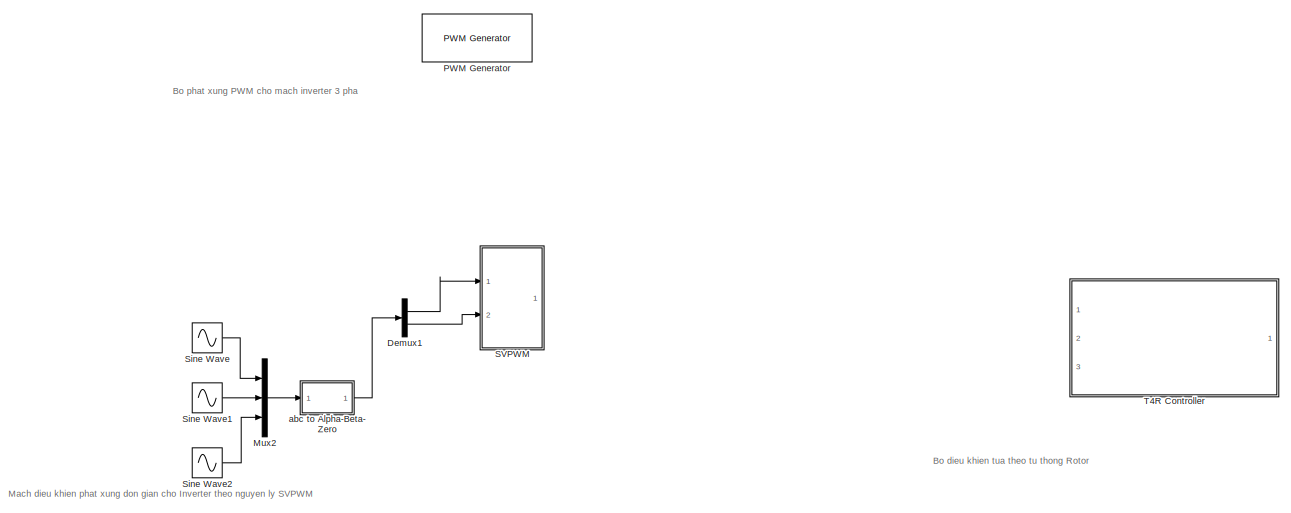
[diagram: root canvas - part 1/2, full width, middle band]
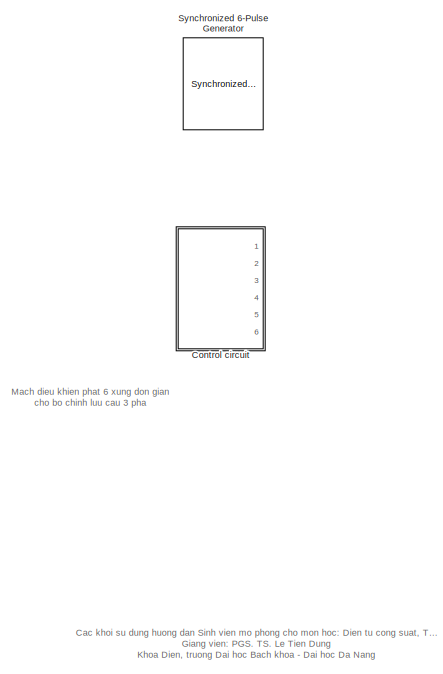
[diagram: root canvas - part 2/2, left side, full height]
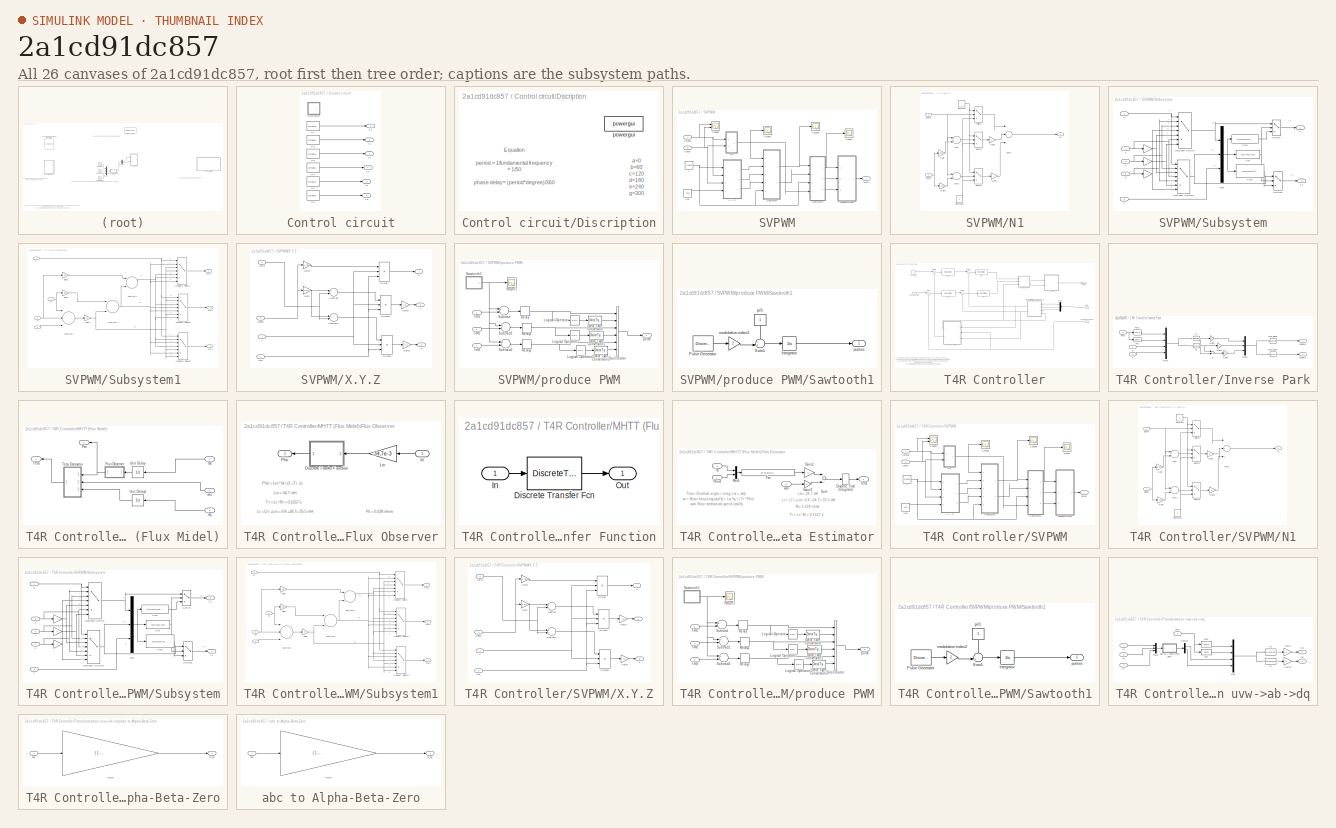
[diagram: thumbnail index - all 26 canvases of the model, root first then tree order]
MODEL slx_2a1cd91dc857
KIND model
CONFIG AbsTol = auto
CONFIG FixedStep = auto
CONFIG MaxStep = auto
CONFIG MinStep = auto
CONFIG RelTol = 1e-3
CONFIG SampleTimeConstraint = Unconstrained
CONFIG Solver = VariableStepAuto
CONFIG SolverMode = SingleTasking
CONFIG SolverName = VariableStepAuto
CONFIG StartTime = 0.0
CONFIG StopTime = 10.0
BLOCK [SubSystem] Control circuit
  Ports = [0, 6]
  RequestExecContextInheritance = off
  Variant = off
BLOCK [SubSystem] Control circuit/Discription
  Ports = []
  RequestExecContextInheritance = off
  Variant = off
BLOCK [Reference] Control circuit/Discription/powergui  REF=powerlib/powergui
  Ports = []
  Priority = 1
  SourceBlock = powerlib/powergui
  SourceType = PSB option menu block
BLOCK [DiscretePulseGenerator] Control circuit/P1
  Period = 1/f
  PhaseDelay = ((pe*a)/360)
  Ports = [0, 1]
  PulseType = Time based
  PulseWidth = p
BLOCK [DiscretePulseGenerator] Control circuit/P2
  Period = 1/f
  PhaseDelay = ((pe*b)/360)
  Ports = [0, 1]
  PulseType = Time based
  PulseWidth = p
BLOCK [DiscretePulseGenerator] Control circuit/P3
  Period = 1/f
  PhaseDelay = ((pe*c)/360)
  Ports = [0, 1]
  PulseType = Time based
  PulseWidth = p
BLOCK [DiscretePulseGenerator] Control circuit/P4
  Period = 1/f
  PhaseDelay = ((pe*d)/360)
  Ports = [0, 1]
  PulseType = Time based
  PulseWidth = p
BLOCK [DiscretePulseGenerator] Control circuit/P5
  Period = 1/f
  PhaseDelay = ((pe*e)/360)
  Ports = [0, 1]
  PulseType = Time based
  PulseWidth = p
BLOCK [DiscretePulseGenerator] Control circuit/P6
  Period = 1/f
  PhaseDelay = ((pe*g)/360)
  Ports = [0, 1]
  PulseType = Time based
  PulseWidth = p
BLOCK [Outport] Control circuit/T1
  IconDisplay = Port number
BLOCK [Outport] Control circuit/T2
  IconDisplay = Port number
  Port = 2
BLOCK [Outport] Control circuit/T3
  IconDisplay = Port number
  Port = 3
BLOCK [Outport] Control circuit/T4
  IconDisplay = Port number
  Port = 4
BLOCK [Outport] Control circuit/T5
  IconDisplay = Port number
  Port = 5
BLOCK [Outport] Control circuit/T6
  IconDisplay = Port number
  Port = 6
BLOCK [Demux] Demux1
  DisplayOption = bar
  Outputs = 2
  Ports = [1, 2]
BLOCK [Mux] Mux2
  DisplayOption = bar
  Inputs = 3
  Ports = [3, 1]
BLOCK [Reference] PWM Generator  REF=powerlib_extras/Control 
Blocks/PWM Generator
  Ports = [0, 1]
  SourceBlock = powerlib_extras/Control \nBlocks/PWM Generator
  SourceType = PWM Generator
BLOCK [SubSystem] SVPWM
  Ports = [2, 1]
  RequestExecContextInheritance = off
  Variant = off
BLOCK [SubSystem] SVPWM/N1
  Ports = [2, 1]
  RequestExecContextInheritance = off
  Variant = off
BLOCK [Constant] SVPWM/N1/Constant
BLOCK [Constant] SVPWM/N1/Constant1
  Value = 0
BLOCK [Gain] SVPWM/N1/Gain
  Gain = 1.732
  OutDataTypeStr = Inherit: Inherit via internal rule
  ParamDataTypeStr = Inherit: Inherit via internal rule
  SaturateOnIntegerOverflow = off
BLOCK [Gain] SVPWM/N1/Gain1
  Gain = -1.732
  OutDataTypeStr = Inherit: Inherit via internal rule
  ParamDataTypeStr = Inherit: Inherit via internal rule
  SaturateOnIntegerOverflow = off
BLOCK [Gain] SVPWM/N1/Gain2
  Gain = 2
  OutDataTypeStr = Inherit: Inherit via internal rule
  ParamDataTypeStr = Inherit: Inherit via internal rule
  SaturateOnIntegerOverflow = off
BLOCK [Gain] SVPWM/N1/Gain3
  Gain = 4
  OutDataTypeStr = Inherit: Inherit via internal rule
  ParamDataTypeStr = Inherit: Inherit via internal rule
  SaturateOnIntegerOverflow = off
BLOCK [Outport] SVPWM/N1/N
  IconDisplay = Port number
BLOCK [Sum] SVPWM/N1/Sum
  InputSameDT = off
  Inputs = |-+
  OutDataTypeStr = Inherit: Inherit via internal rule
  Ports = [2, 1]
  SaturateOnIntegerOverflow = off
BLOCK [Sum] SVPWM/N1/Sum1
  InputSameDT = off
  Inputs = |-+
  OutDataTypeStr = Inherit: Inherit via internal rule
  Ports = [2, 1]
  SaturateOnIntegerOverflow = off
BLOCK [Sum] SVPWM/N1/Sum2
  InputSameDT = off
  Inputs = |+++
  OutDataTypeStr = Inherit: Inherit via internal rule
  Ports = [3, 1]
  SaturateOnIntegerOverflow = off
BLOCK [Switch] SVPWM/N1/Switch
  InputSameDT = off
  SaturateOnIntegerOverflow = off
BLOCK [Switch] SVPWM/N1/Switch1
  InputSameDT = off
  SaturateOnIntegerOverflow = off
BLOCK [Switch] SVPWM/N1/Switch2
  InputSameDT = off
  SaturateOnIntegerOverflow = off
BLOCK [Inport] SVPWM/N1/Ualpha
  IconDisplay = Port number
BLOCK [Inport] SVPWM/N1/Ubeta
  IconDisplay = Port number
  Port = 2
BLOCK [Scope] SVPWM/Scope
  Ports = [1]
  ScopeSpecificationString = Simulink.scopes.TimeScopeBlockCfg('CurrentConfiguration', extmgr.ConfigurationSet(extmgr.Configuration('Core','General UI',true),extmgr.Configuration('Core','Source UI',true),extmgr.Configuration('Sources','WiredSimulink',true,'DataLoggingSaveFormat','StructureWithTime','DataLoggingDecimation','1','DataLoggingDecimateData',true),extmgr.Configuration('Visuals','Time Domain',true,'SerializedDisplays...<+1625ch>
BLOCK [Scope] SVPWM/Scope1
  Ports = [1]
  ScopeSpecificationString = Simulink.scopes.TimeScopeBlockCfg('CurrentConfiguration', extmgr.ConfigurationSet(extmgr.Configuration('Core','General UI',true),extmgr.Configuration('Core','Source UI',true),extmgr.Configuration('Sources','WiredSimulink',true,'DataLoggingVariableName','ScopeData1','DataLoggingSaveFormat','StructureWithTime','DataLoggingDecimation','1','DataLoggingDecimateData',true),extmgr.Configuration('Visuals'...<+1591ch>
BLOCK [Scope] SVPWM/Scope3
  NumInputPorts = 2
  Ports = [2]
  ScopeSpecificationString = Simulink.scopes.TimeScopeBlockCfg('CurrentConfiguration', extmgr.ConfigurationSet(extmgr.Configuration('Core','General UI',true),extmgr.Configuration('Core','Source UI',true),extmgr.Configuration('Sources','WiredSimulink',true,'DataLoggingVariableName','ScopeData2','DataLoggingSaveFormat','StructureWithTime','DataLoggingDecimation','1','DataLoggingDecimateData',true),extmgr.Configuration('Visuals'...<+2387ch>
BLOCK [Scope] SVPWM/Scope6
  Ports = [1]
  ScopeSpecificationString = Simulink.scopes.TimeScopeBlockCfg('CurrentConfiguration', extmgr.ConfigurationSet(extmgr.Configuration('Core','General UI',true),extmgr.Configuration('Core','Source UI',true),extmgr.Configuration('Sources','WiredSimulink',true,'DataLoggingVariableName','ScopeData3','DataLoggingSaveFormat','StructureWithTime','DataLoggingDecimation','1','DataLoggingDecimateData',true),extmgr.Configuration('Visuals'...<+1591ch>
BLOCK [SubSystem] SVPWM/Subsystem
  Ports = [5, 2]
  RequestExecContextInheritance = off
  Variant = off
BLOCK [Gain] SVPWM/Subsystem/ 
  Gain = -1
  OutDataTypeStr = Inherit: Inherit via internal rule
  ParamDataTypeStr = Inherit: Inherit via internal rule
  SaturateOnIntegerOverflow = off
BLOCK [Gain] SVPWM/Subsystem/  
  Gain = -1
  OutDataTypeStr = Inherit: Inherit via internal rule
  ParamDataTypeStr = Inherit: Inherit via internal rule
  SaturateOnIntegerOverflow = off
BLOCK [Gain] SVPWM/Subsystem/    
  Gain = -1
  OutDataTypeStr = Inherit: Inherit via internal rule
  ParamDataTypeStr = Inherit: Inherit via internal rule
  SaturateOnIntegerOverflow = off
BLOCK [Fcn] SVPWM/Subsystem/Fcn
  Expr = u(3)-u(2)-u(1)
BLOCK [Fcn] SVPWM/Subsystem/Fcn1
  Expr = u(1)*u(3)/(u(1)+u(2))
BLOCK [Fcn] SVPWM/Subsystem/Fcn2
  Expr = u(2)*u(3)/(u(1)+u(2))
BLOCK [MultiPortSwitch] SVPWM/Subsystem/Multiport Switch
  InputSameDT = off
  Inputs = 6
  Ports = [7, 1]
  SaturateOnIntegerOverflow = off
BLOCK [MultiPortSwitch] SVPWM/Subsystem/Multiport Switch1
  InputSameDT = off
  Inputs = 6
  Ports = [7, 1]
  SaturateOnIntegerOverflow = off
BLOCK [Mux] SVPWM/Subsystem/Mux
  DisplayOption = bar
  Inputs = 3
  Ports = [3, 1]
BLOCK [Inport] SVPWM/Subsystem/N
  IconDisplay = Port number
BLOCK [Switch] SVPWM/Subsystem/Switch
  InputSameDT = off
  SaturateOnIntegerOverflow = off
BLOCK [Switch] SVPWM/Subsystem/Switch1
  Criteria = u2 > Threshold
  InputSameDT = off
  SaturateOnIntegerOverflow = off
BLOCK [Inport] SVPWM/Subsystem/T
  IconDisplay = Port number
  Port = 5
BLOCK [Outport] SVPWM/Subsystem/T1
  IconDisplay = Port number
BLOCK [Outport] SVPWM/Subsystem/T2
  IconDisplay = Port number
  Port = 2
BLOCK [Inport] SVPWM/Subsystem/X
  IconDisplay = Port number
  Port = 2
BLOCK [Inport] SVPWM/Subsystem/Y
  IconDisplay = Port number
  Port = 3
BLOCK [Inport] SVPWM/Subsystem/Z
  IconDisplay = Port number
  Port = 4
BLOCK [SubSystem] SVPWM/Subsystem1
  Ports = [4, 3]
  RequestExecContextInheritance = off
  Variant = off
BLOCK [Gain] SVPWM/Subsystem1/Gain1
  Gain = 1/4
  OutDataTypeStr = Inherit: Inherit via internal rule
  ParamDataTypeStr = Inherit: Inherit via internal rule
  SaturateOnIntegerOverflow = off
BLOCK [Gain] SVPWM/Subsystem1/Gain2
  Gain = 0.5
  OutDataTypeStr = Inherit: Inherit via internal rule
  ParamDataTypeStr = Inherit: Inherit via internal rule
  SaturateOnIntegerOverflow = off
BLOCK [Gain] SVPWM/Subsystem1/Gain3
  Gain = 0.5
  OutDataTypeStr = Inherit: Inherit via internal rule
  ParamDataTypeStr = Inherit: Inherit via internal rule
  SaturateOnIntegerOverflow = off
BLOCK [MultiPortSwitch] SVPWM/Subsystem1/Multiport Switch
  InputSameDT = off
  Inputs = 6
  Ports = [7, 1]
  SaturateOnIntegerOverflow = off
BLOCK [MultiPortSwitch] SVPWM/Subsystem1/Multiport Switch1
  InputSameDT = off
  Inputs = 6
  Ports = [7, 1]
  SaturateOnIntegerOverflow = off
BLOCK [MultiPortSwitch] SVPWM/Subsystem1/Multiport Switch2
  InputSameDT = off
  Inputs = 6
  Ports = [7, 1]
  SaturateOnIntegerOverflow = off
BLOCK [Inport] SVPWM/Subsystem1/N
  IconDisplay = Port number
  Port = 4
BLOCK [Sum] SVPWM/Subsystem1/Subtract1
  InputSameDT = off
  Inputs = --+
  OutDataTypeStr = Inherit: Inherit via internal rule
  Ports = [3, 1]
  SaturateOnIntegerOverflow = off
BLOCK [Sum] SVPWM/Subsystem1/Subtract2
  InputSameDT = off
  OutDataTypeStr = Inherit: Inherit via internal rule
  Ports = [2, 1]
  SaturateOnIntegerOverflow = off
BLOCK [Sum] SVPWM/Subsystem1/Subtract3
  InputSameDT = off
  OutDataTypeStr = Inherit: Inherit via internal rule
  Ports = [2, 1]
  SaturateOnIntegerOverflow = off
BLOCK [Inport] SVPWM/Subsystem1/T
  IconDisplay = Port number
  Port = 3
BLOCK [Inport] SVPWM/Subsystem1/T1
  IconDisplay = Port number
BLOCK [Inport] SVPWM/Subsystem1/T2
  IconDisplay = Port number
  Port = 2
BLOCK [Outport] SVPWM/Subsystem1/Tcm1
  IconDisplay = Port number
BLOCK [Outport] SVPWM/Subsystem1/Tcm2
  IconDisplay = Port number
  Port = 2
BLOCK [Outport] SVPWM/Subsystem1/Tcm3
  IconDisplay = Port number
  Port = 3
BLOCK [Constant] SVPWM/T
  Value = 0.0001
BLOCK [Inport] SVPWM/Ualpha
  IconDisplay = Port number
BLOCK [Inport] SVPWM/Ubeta
  IconDisplay = Port number
  Port = 2
BLOCK [Constant] SVPWM/Udc
  Value = 620
BLOCK [SubSystem] SVPWM/X.Y.Z
  Ports = [4, 3]
  RequestExecContextInheritance = off
  Variant = off
BLOCK [Product] SVPWM/X.Y.Z/Divide
  InputSameDT = off
  Inputs = **/
  OutDataTypeStr = Inherit: Inherit via internal rule
  Ports = [3, 1]
  RndMeth = Floor
  SaturateOnIntegerOverflow = off
BLOCK [Product] SVPWM/X.Y.Z/Divide1
  InputSameDT = off
  Inputs = **/
  OutDataTypeStr = Inherit: Inherit via internal rule
  Ports = [3, 1]
  RndMeth = Floor
  SaturateOnIntegerOverflow = off
BLOCK [Product] SVPWM/X.Y.Z/Divide2
  InputSameDT = off
  Inputs = **/
  OutDataTypeStr = Inherit: Inherit via internal rule
  Ports = [3, 1]
  RndMeth = Floor
  SaturateOnIntegerOverflow = off
BLOCK [Gain] SVPWM/X.Y.Z/Gain
  Gain = 0.577
  OutDataTypeStr = Inherit: Inherit via internal rule
  ParamDataTypeStr = Inherit: Inherit via internal rule
  SaturateOnIntegerOverflow = off
BLOCK [Gain] SVPWM/X.Y.Z/Gain1
  Gain = 1.732
  OutDataTypeStr = Inherit: Inherit via internal rule
  ParamDataTypeStr = Inherit: Inherit via internal rule
  SaturateOnIntegerOverflow = off
BLOCK [Gain] SVPWM/X.Y.Z/Gain2
  Gain = 1.5
  OutDataTypeStr = Inherit: Inherit via internal rule
  ParamDataTypeStr = Inherit: Inherit via internal rule
  SaturateOnIntegerOverflow = off
BLOCK [Gain] SVPWM/X.Y.Z/Gain3
  Gain = 1.5
  OutDataTypeStr = Inherit: Inherit via internal rule
  ParamDataTypeStr = Inherit: Inherit via internal rule
  SaturateOnIntegerOverflow = off
BLOCK [Sum] SVPWM/X.Y.Z/Subtract
  InputSameDT = off
  OutDataTypeStr = Inherit: Inherit via internal rule
  Ports = [2, 1]
  SaturateOnIntegerOverflow = off
BLOCK [Sum] SVPWM/X.Y.Z/Subtract1
  InputSameDT = off
  Inputs = +-
  OutDataTypeStr = Inherit: Inherit via internal rule
  Ports = [2, 1]
  SaturateOnIntegerOverflow = off
BLOCK [Inport] SVPWM/X.Y.Z/T
  IconDisplay = Port number
BLOCK [Inport] SVPWM/X.Y.Z/Ualfa
  IconDisplay = Port number
  Port = 2
BLOCK [Inport] SVPWM/X.Y.Z/Ubeta
  IconDisplay = Port number
  Port = 3
BLOCK [Inport] SVPWM/X.Y.Z/Udc
  IconDisplay = Port number
  Port = 4
BLOCK [Outport] SVPWM/X.Y.Z/X
  IconDisplay = Port number
BLOCK [Outport] SVPWM/X.Y.Z/Y
  IconDisplay = Port number
  Port = 2
BLOCK [Outport] SVPWM/X.Y.Z/Z
  IconDisplay = Port number
  Port = 3
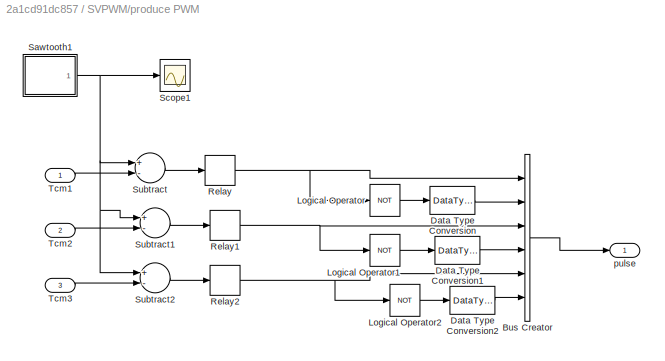
BLOCK [SubSystem] SVPWM/produce PWM
  Ports = [3, 1]
  RequestExecContextInheritance = off
  Variant = off
BLOCK [BusCreator] SVPWM/produce PWM/Bus Creator
  DisplayOption = bar
  InheritFromInputs = on
  Inputs = 6
  Ports = [6, 1]
BLOCK [DataTypeConversion] SVPWM/produce PWM/Data Type Conversion
  OutDataTypeStr = double
  RndMeth = Floor
  SaturateOnIntegerOverflow = off
BLOCK [DataTypeConversion] SVPWM/produce PWM/Data Type Conversion1
  OutDataTypeStr = double
  RndMeth = Floor
  SaturateOnIntegerOverflow = off
BLOCK [DataTypeConversion] SVPWM/produce PWM/Data Type Conversion2
  OutDataTypeStr = double
  RndMeth = Floor
  SaturateOnIntegerOverflow = off
BLOCK [Logic] SVPWM/produce PWM/Logical Operator
  AllPortsSameDT = off
  Operator = NOT
  Ports = [1, 1]
BLOCK [Logic] SVPWM/produce PWM/Logical Operator1
  AllPortsSameDT = off
  Operator = NOT
  Ports = [1, 1]
BLOCK [Logic] SVPWM/produce PWM/Logical Operator2
  AllPortsSameDT = off
  Operator = NOT
  Ports = [1, 1]
BLOCK [Relay] SVPWM/produce PWM/Relay
BLOCK [Relay] SVPWM/produce PWM/Relay1
BLOCK [Relay] SVPWM/produce PWM/Relay2
BLOCK [SubSystem] SVPWM/produce PWM/Sawtooth1
  Ports = [0, 1]
  RequestExecContextInheritance = off
  Variant = off
BLOCK [Integrator] SVPWM/produce PWM/Sawtooth1/Integrator
  Ports = [1, 1]
BLOCK [DiscretePulseGenerator] SVPWM/produce PWM/Sawtooth1/Pulse Generator
  Period = 0.0001
  Ports = [0, 1]
  PulseType = Time based
  PulseWidth = 50
BLOCK [Sum] SVPWM/produce PWM/Sawtooth1/Sum1
  IconShape = round
  Inputs = -+|
  Ports = [2, 1]
BLOCK [Gain] SVPWM/produce PWM/Sawtooth1/modulation index2
  Gain = 2
BLOCK [Constant] SVPWM/produce PWM/Sawtooth1/pi//1
BLOCK [Outport] SVPWM/produce PWM/Sawtooth1/pulses
  IconDisplay = Port number
BLOCK [Scope] SVPWM/produce PWM/Scope1
  Ports = [1]
  ScopeSpecificationString = Simulink.scopes.TimeScopeBlockCfg('CurrentConfiguration', extmgr.ConfigurationSet(extmgr.Configuration('Core','General UI',true),extmgr.Configuration('Core','Source UI',true),extmgr.Configuration('Sources','WiredSimulink',true,'DataLoggingVariableName','ScopeData6','DataLoggingSaveFormat','StructureWithTime','DataLoggingDecimation','1','DataLoggingDecimateData',true),extmgr.Configuration('Visuals'...<+1656ch>
BLOCK [Sum] SVPWM/produce PWM/Subtract
  InputSameDT = off
  Inputs = +-
  OutDataTypeStr = Inherit: Inherit via internal rule
  Ports = [2, 1]
  SaturateOnIntegerOverflow = off
BLOCK [Sum] SVPWM/produce PWM/Subtract1
  InputSameDT = off
  Inputs = +-
  OutDataTypeStr = Inherit: Inherit via internal rule
  Ports = [2, 1]
  SaturateOnIntegerOverflow = off
BLOCK [Sum] SVPWM/produce PWM/Subtract2
  InputSameDT = off
  Inputs = +-
  OutDataTypeStr = Inherit: Inherit via internal rule
  Ports = [2, 1]
  SaturateOnIntegerOverflow = off
BLOCK [Inport] SVPWM/produce PWM/Tcm1
  IconDisplay = Port number
BLOCK [Inport] SVPWM/produce PWM/Tcm2
  IconDisplay = Port number
  Port = 2
BLOCK [Inport] SVPWM/produce PWM/Tcm3
  IconDisplay = Port number
  Port = 3
BLOCK [Outport] SVPWM/produce PWM/pulse
  IconDisplay = Port number
BLOCK [Outport] SVPWM/pulse
  IconDisplay = Port number
BLOCK [Sin] Sine Wave
  Amplitude = 220*sqrt(2)
  Frequency = 50
  Ports = [0, 1]
  SampleTime = 0
BLOCK [Sin] Sine Wave1
  Amplitude = 220*sqrt(2)
  Frequency = 50
  Phase = -2*pi/3
  Ports = [0, 1]
  SampleTime = 0
BLOCK [Sin] Sine Wave2
  Amplitude = 220*sqrt(2)
  Frequency = 50
  Phase = -4*pi/3
  Ports = [0, 1]
  SampleTime = 0
BLOCK [Reference] Synchronized 6-Pulse Generator  REF=powerlib_extras/Control 
Blocks/Synchronized
6-Pulse Generator
  Ports = [5, 1]
  SourceBlock = powerlib_extras/Control \nBlocks/Synchronized\n6-Pulse Generator
  SourceType = Synchronized 6-pulse generator
BLOCK [SubSystem] T4R Controller
  Ports = [3, 1]
  RequestExecContextInheritance = off
  Variant = off
BLOCK [Constant] T4R Controller/Constant
BLOCK [Demux] T4R Controller/Demux
  DisplayOption = bar
  Outputs = 3
  Ports = [1, 3]
BLOCK [Inport] T4R Controller/Feedback Speed
  IconDisplay = Port number
  Port = 3
BLOCK [Inport] T4R Controller/Iabc
  IconDisplay = Port number
  Port = 2
BLOCK [SubSystem] T4R Controller/Inverse Park
  Ports = [3, 2]
  RequestExecContextInheritance = off
  Variant = off
BLOCK [Fcn] T4R Controller/Inverse Park/3to2_alpha
  Expr = u[1]-0.5*u[2]-0.5*u[3]
BLOCK [Fcn] T4R Controller/Inverse Park/3to2_beta
  Expr = sqrt(3)/2*(u[2]-u[3])
BLOCK [Fcn] T4R Controller/Inverse Park/Fcn
  Expr = sin(u)
BLOCK [Fcn] T4R Controller/Inverse Park/Fcn1
  Expr = cos(u)
BLOCK [Gain] T4R Controller/Inverse Park/Gain2
BLOCK [Gain] T4R Controller/Inverse Park/Gain3
BLOCK [Gain] T4R Controller/Inverse Park/Gain4
BLOCK [Mux] T4R Controller/Inverse Park/Mux1
  DisplayOption = bar
  Ports = [4, 1]
BLOCK [Mux] T4R Controller/Inverse Park/Mux3
  DisplayOption = bar
  Inputs = 3
  Ports = [3, 1]
BLOCK [Inport] T4R Controller/Inverse Park/Teta
  IconDisplay = Port number
  Port = 3
BLOCK [Inport] T4R Controller/Inverse Park/d
  IconDisplay = Port number
BLOCK [Fcn] T4R Controller/Inverse Park/ia
  Expr = -u[3]*u[2] + u[4]*u[1]
BLOCK [Fcn] T4R Controller/Inverse Park/ib
  Expr = (-u[1]+1.7320508*u[2])*u[4]*0.5+(u[2]+1.7320508*u[1])*u[3]*0.5
BLOCK [Sum] T4R Controller/Inverse Park/ic
  Inputs = --
  Ports = [2, 1]
BLOCK [Inport] T4R Controller/Inverse Park/q
  IconDisplay = Port number
  Port = 2
BLOCK [Outport] T4R Controller/Inverse Park/usalpha
  IconDisplay = Port number
BLOCK [Outport] T4R Controller/Inverse Park/usbeta
  IconDisplay = Port number
  Port = 2
BLOCK [SubSystem] T4R Controller/MHTT (Flux Midel)
  Ports = [3, 2]
  RequestExecContextInheritance = off
  Variant = off
BLOCK [SubSystem] T4R Controller/MHTT (Flux Midel)/Flux Observer
  Ports = [1, 1]
  RequestExecContextInheritance = off
  Variant = off
BLOCK [SubSystem] T4R Controller/MHTT (Flux Midel)/Flux Observer/Discrete Tranfer Function
  Ports = [1, 1]
  RequestExecContextInheritance = off
  Variant = off
BLOCK [DiscreteTransferFcn] T4R Controller/MHTT (Flux Midel)/Flux Observer/Discrete Tranfer Function/Discrete Transfer Fcn
  Denominator = dend
  InputPortMap = u0
  Numerator = numd
  Ports = [1, 1]
  SampleTime = Ts
BLOCK [Inport] T4R Controller/MHTT (Flux Midel)/Flux Observer/Discrete Tranfer Function/In
  IconDisplay = Port number
BLOCK [Outport] T4R Controller/MHTT (Flux Midel)/Flux Observer/Discrete Tranfer Function/Out
  IconDisplay = Port number
  InitialOutput = 0
BLOCK [Inport] T4R Controller/MHTT (Flux Midel)/Flux Observer/Id
  IconDisplay = Port number
BLOCK [Gain] T4R Controller/MHTT (Flux Midel)/Flux Observer/Lm
  Gain = 34.7e-3
BLOCK [Outport] T4R Controller/MHTT (Flux Midel)/Flux Observer/Phir
  IconDisplay = Port number
BLOCK [Inport] T4R Controller/MHTT (Flux Midel)/Isd
  IconDisplay = Port number
BLOCK [Inport] T4R Controller/MHTT (Flux Midel)/Isq
  IconDisplay = Port number
  Port = 3
BLOCK [Outport] T4R Controller/MHTT (Flux Midel)/Psir
  IconDisplay = Port number
  Port = 2
BLOCK [Outport] T4R Controller/MHTT (Flux Midel)/Teta
  IconDisplay = Port number
BLOCK [SubSystem] T4R Controller/MHTT (Flux Midel)/Teta Estimator
  Ports = [3, 1]
  RequestExecContextInheritance = off
  Variant = off
BLOCK [DiscreteIntegrator] T4R Controller/MHTT (Flux Midel)/Teta Estimator/Discrete-Time Integrator
  ICPrevOutput = DiscIntNeverNeededParam
  ICPrevScaledInput = DiscIntNeverNeededParam
  Ports = [1, 1]
  SampleTime = Ts
BLOCK [Fcn] T4R Controller/MHTT (Flux Midel)/Teta Estimator/Fcn
  Expr = 34.7e-3*u[1]/(u[2]*0.1557+1e-3)
BLOCK [Gain] T4R Controller/MHTT (Flux Midel)/Teta Estimator/Gain2
BLOCK [Gain] T4R Controller/MHTT (Flux Midel)/Teta Estimator/Gain3
  Gain = 2
BLOCK [Inport] T4R Controller/MHTT (Flux Midel)/Teta Estimator/Iq
  IconDisplay = Port number
  Port = 3
BLOCK [Mux] T4R Controller/MHTT (Flux Midel)/Teta Estimator/Mux1
  DisplayOption = bar
  Inputs = 2
  Ports = [2, 1]
BLOCK [Inport] T4R Controller/MHTT (Flux Midel)/Teta Estimator/Phird
  IconDisplay = Port number
BLOCK [Sum] T4R Controller/MHTT (Flux Midel)/Teta Estimator/Sum
  Ports = [2, 1]
BLOCK [Outport] T4R Controller/MHTT (Flux Midel)/Teta Estimator/Teta
  IconDisplay = Port number
  InitialOutput = 0
BLOCK [Inport] T4R Controller/MHTT (Flux Midel)/Teta Estimator/wm
  IconDisplay = Port number
  Port = 2
BLOCK [UnitDelay] T4R Controller/MHTT (Flux Midel)/Unit Delay
  InputProcessing = Elements as channels (sample based)
  SampleTime = -1
BLOCK [UnitDelay] T4R Controller/MHTT (Flux Midel)/Unit Delay1
  InputProcessing = Elements as channels (sample based)
  SampleTime = -1
BLOCK [Inport] T4R Controller/MHTT (Flux Midel)/wm
  IconDisplay = Port number
  Port = 2
BLOCK [Outport] T4R Controller/Pulse
  IconDisplay = Port number
BLOCK [Reference] T4R Controller/RI1  REF=simulink/Continuous/PID Controller
  Ports = [1, 1]
  SourceBlock = simulink/Continuous/PID Controller
  SourceType = PID 1dof
BLOCK [Reference] T4R Controller/RI2  REF=simulink/Continuous/PID Controller
  Ports = [1, 1]
  SourceBlock = simulink/Continuous/PID Controller
  SourceType = PID 1dof
BLOCK [Reference] T4R Controller/RPsir  REF=simulink/Continuous/PID Controller
  Ports = [1, 1]
  SourceBlock = simulink/Continuous/PID Controller
  SourceType = PID 1dof
BLOCK [Reference] T4R Controller/Rw  REF=simulink/Continuous/PID Controller
  Ports = [1, 1]
  SourceBlock = simulink/Continuous/PID Controller
  SourceType = PID 1dof
BLOCK [SubSystem] T4R Controller/SVPWM
  Ports = [2, 1]
  RequestExecContextInheritance = off
  Variant = off
BLOCK [SubSystem] T4R Controller/SVPWM/N1
  Ports = [2, 1]
  RequestExecContextInheritance = off
  Variant = off
BLOCK [Constant] T4R Controller/SVPWM/N1/Constant
BLOCK [Constant] T4R Controller/SVPWM/N1/Constant1
  Value = 0
BLOCK [Gain] T4R Controller/SVPWM/N1/Gain
  Gain = 1.732
  OutDataTypeStr = Inherit: Inherit via internal rule
  ParamDataTypeStr = Inherit: Inherit via internal rule
  SaturateOnIntegerOverflow = off
BLOCK [Gain] T4R Controller/SVPWM/N1/Gain1
  Gain = -1.732
  OutDataTypeStr = Inherit: Inherit via internal rule
  ParamDataTypeStr = Inherit: Inherit via internal rule
  SaturateOnIntegerOverflow = off
BLOCK [Gain] T4R Controller/SVPWM/N1/Gain2
  Gain = 2
  OutDataTypeStr = Inherit: Inherit via internal rule
  ParamDataTypeStr = Inherit: Inherit via internal rule
  SaturateOnIntegerOverflow = off
BLOCK [Gain] T4R Controller/SVPWM/N1/Gain3
  Gain = 4
  OutDataTypeStr = Inherit: Inherit via internal rule
  ParamDataTypeStr = Inherit: Inherit via internal rule
  SaturateOnIntegerOverflow = off
BLOCK [Outport] T4R Controller/SVPWM/N1/N
  IconDisplay = Port number
BLOCK [Sum] T4R Controller/SVPWM/N1/Sum
  InputSameDT = off
  Inputs = |-+
  OutDataTypeStr = Inherit: Inherit via internal rule
  Ports = [2, 1]
  SaturateOnIntegerOverflow = off
BLOCK [Sum] T4R Controller/SVPWM/N1/Sum1
  InputSameDT = off
  Inputs = |-+
  OutDataTypeStr = Inherit: Inherit via internal rule
  Ports = [2, 1]
  SaturateOnIntegerOverflow = off
BLOCK [Sum] T4R Controller/SVPWM/N1/Sum2
  InputSameDT = off
  Inputs = |+++
  OutDataTypeStr = Inherit: Inherit via internal rule
  Ports = [3, 1]
  SaturateOnIntegerOverflow = off
BLOCK [Switch] T4R Controller/SVPWM/N1/Switch
  InputSameDT = off
  SaturateOnIntegerOverflow = off
BLOCK [Switch] T4R Controller/SVPWM/N1/Switch1
  InputSameDT = off
  SaturateOnIntegerOverflow = off
BLOCK [Switch] T4R Controller/SVPWM/N1/Switch2
  InputSameDT = off
  SaturateOnIntegerOverflow = off
BLOCK [Inport] T4R Controller/SVPWM/N1/Ualpha
  IconDisplay = Port number
BLOCK [Inport] T4R Controller/SVPWM/N1/Ubeta
  IconDisplay = Port number
  Port = 2
BLOCK [Scope] T4R Controller/SVPWM/Scope
  Ports = [1]
  ScopeSpecificationString = Simulink.scopes.TimeScopeBlockCfg('CurrentConfiguration', extmgr.ConfigurationSet(extmgr.Configuration('Core','General UI',true),extmgr.Configuration('Core','Source UI',true),extmgr.Configuration('Sources','WiredSimulink',true,'DataLoggingSaveFormat','StructureWithTime','DataLoggingDecimation','1','DataLoggingDecimateData',true),extmgr.Configuration('Visuals','Time Domain',true,'SerializedDisplays...<+1625ch>
BLOCK [Scope] T4R Controller/SVPWM/Scope1
  Ports = [1]
  ScopeSpecificationString = Simulink.scopes.TimeScopeBlockCfg('CurrentConfiguration', extmgr.ConfigurationSet(extmgr.Configuration('Core','General UI',true),extmgr.Configuration('Core','Source UI',true),extmgr.Configuration('Sources','WiredSimulink',true,'DataLoggingVariableName','ScopeData1','DataLoggingSaveFormat','StructureWithTime','DataLoggingDecimation','1','DataLoggingDecimateData',true),extmgr.Configuration('Visuals'...<+1591ch>
BLOCK [Scope] T4R Controller/SVPWM/Scope3
  NumInputPorts = 2
  Ports = [2]
  ScopeSpecificationString = Simulink.scopes.TimeScopeBlockCfg('CurrentConfiguration', extmgr.ConfigurationSet(extmgr.Configuration('Core','General UI',true),extmgr.Configuration('Core','Source UI',true),extmgr.Configuration('Sources','WiredSimulink',true,'DataLoggingVariableName','ScopeData2','DataLoggingSaveFormat','StructureWithTime','DataLoggingDecimation','1','DataLoggingDecimateData',true),extmgr.Configuration('Visuals'...<+2387ch>
BLOCK [Scope] T4R Controller/SVPWM/Scope6
  Ports = [1]
  ScopeSpecificationString = Simulink.scopes.TimeScopeBlockCfg('CurrentConfiguration', extmgr.ConfigurationSet(extmgr.Configuration('Core','General UI',true),extmgr.Configuration('Core','Source UI',true),extmgr.Configuration('Sources','WiredSimulink',true,'DataLoggingVariableName','ScopeData3','DataLoggingSaveFormat','StructureWithTime','DataLoggingDecimation','1','DataLoggingDecimateData',true),extmgr.Configuration('Visuals'...<+1591ch>
BLOCK [SubSystem] T4R Controller/SVPWM/Subsystem
  Ports = [5, 2]
  RequestExecContextInheritance = off
  Variant = off
BLOCK [Gain] T4R Controller/SVPWM/Subsystem/ 
  Gain = -1
  OutDataTypeStr = Inherit: Inherit via internal rule
  ParamDataTypeStr = Inherit: Inherit via internal rule
  SaturateOnIntegerOverflow = off
BLOCK [Gain] T4R Controller/SVPWM/Subsystem/  
  Gain = -1
  OutDataTypeStr = Inherit: Inherit via internal rule
  ParamDataTypeStr = Inherit: Inherit via internal rule
  SaturateOnIntegerOverflow = off
BLOCK [Gain] T4R Controller/SVPWM/Subsystem/    
  Gain = -1
  OutDataTypeStr = Inherit: Inherit via internal rule
  ParamDataTypeStr = Inherit: Inherit via internal rule
  SaturateOnIntegerOverflow = off
BLOCK [Fcn] T4R Controller/SVPWM/Subsystem/Fcn
  Expr = u(3)-u(2)-u(1)
BLOCK [Fcn] T4R Controller/SVPWM/Subsystem/Fcn1
  Expr = u(1)*u(3)/(u(1)+u(2))
BLOCK [Fcn] T4R Controller/SVPWM/Subsystem/Fcn2
  Expr = u(2)*u(3)/(u(1)+u(2))
BLOCK [MultiPortSwitch] T4R Controller/SVPWM/Subsystem/Multiport Switch
  DiagnosticForDefault = None
  InputSameDT = off
  Inputs = 6
  Ports = [7, 1]
  SaturateOnIntegerOverflow = off
BLOCK [MultiPortSwitch] T4R Controller/SVPWM/Subsystem/Multiport Switch1
  DiagnosticForDefault = None
  InputSameDT = off
  Inputs = 6
  Ports = [7, 1]
  SaturateOnIntegerOverflow = off
BLOCK [Mux] T4R Controller/SVPWM/Subsystem/Mux
  DisplayOption = bar
  Inputs = 3
  Ports = [3, 1]
BLOCK [Inport] T4R Controller/SVPWM/Subsystem/N
  IconDisplay = Port number
BLOCK [Switch] T4R Controller/SVPWM/Subsystem/Switch
  InputSameDT = off
  SaturateOnIntegerOverflow = off
BLOCK [Switch] T4R Controller/SVPWM/Subsystem/Switch1
  Criteria = u2 > Threshold
  InputSameDT = off
  SaturateOnIntegerOverflow = off
BLOCK [Inport] T4R Controller/SVPWM/Subsystem/T
  IconDisplay = Port number
  Port = 5
BLOCK [Outport] T4R Controller/SVPWM/Subsystem/T1
  IconDisplay = Port number
BLOCK [Outport] T4R Controller/SVPWM/Subsystem/T2
  IconDisplay = Port number
  Port = 2
BLOCK [Inport] T4R Controller/SVPWM/Subsystem/X
  IconDisplay = Port number
  Port = 2
BLOCK [Inport] T4R Controller/SVPWM/Subsystem/Y
  IconDisplay = Port number
  Port = 3
BLOCK [Inport] T4R Controller/SVPWM/Subsystem/Z
  IconDisplay = Port number
  Port = 4
BLOCK [SubSystem] T4R Controller/SVPWM/Subsystem1
  Ports = [4, 3]
  RequestExecContextInheritance = off
  Variant = off
BLOCK [Gain] T4R Controller/SVPWM/Subsystem1/Gain1
  Gain = 1/4
  OutDataTypeStr = Inherit: Inherit via internal rule
  ParamDataTypeStr = Inherit: Inherit via internal rule
  SaturateOnIntegerOverflow = off
BLOCK [Gain] T4R Controller/SVPWM/Subsystem1/Gain2
  Gain = 0.5
  OutDataTypeStr = Inherit: Inherit via internal rule
  ParamDataTypeStr = Inherit: Inherit via internal rule
  SaturateOnIntegerOverflow = off
BLOCK [Gain] T4R Controller/SVPWM/Subsystem1/Gain3
  Gain = 0.5
  OutDataTypeStr = Inherit: Inherit via internal rule
  ParamDataTypeStr = Inherit: Inherit via internal rule
  SaturateOnIntegerOverflow = off
BLOCK [MultiPortSwitch] T4R Controller/SVPWM/Subsystem1/Multiport Switch
  DiagnosticForDefault = None
  InputSameDT = off
  Inputs = 6
  Ports = [7, 1]
  SaturateOnIntegerOverflow = off
BLOCK [MultiPortSwitch] T4R Controller/SVPWM/Subsystem1/Multiport Switch1
  DiagnosticForDefault = None
  InputSameDT = off
  Inputs = 6
  Ports = [7, 1]
  SaturateOnIntegerOverflow = off
BLOCK [MultiPortSwitch] T4R Controller/SVPWM/Subsystem1/Multiport Switch2
  DiagnosticForDefault = None
  InputSameDT = off
  Inputs = 6
  Ports = [7, 1]
  SaturateOnIntegerOverflow = off
BLOCK [Inport] T4R Controller/SVPWM/Subsystem1/N
  IconDisplay = Port number
  Port = 4
BLOCK [Sum] T4R Controller/SVPWM/Subsystem1/Subtract1
  InputSameDT = off
  Inputs = --+
  OutDataTypeStr = Inherit: Inherit via internal rule
  Ports = [3, 1]
  SaturateOnIntegerOverflow = off
BLOCK [Sum] T4R Controller/SVPWM/Subsystem1/Subtract2
  InputSameDT = off
  OutDataTypeStr = Inherit: Inherit via internal rule
  Ports = [2, 1]
  SaturateOnIntegerOverflow = off
BLOCK [Sum] T4R Controller/SVPWM/Subsystem1/Subtract3
  InputSameDT = off
  OutDataTypeStr = Inherit: Inherit via internal rule
  Ports = [2, 1]
  SaturateOnIntegerOverflow = off
BLOCK [Inport] T4R Controller/SVPWM/Subsystem1/T
  IconDisplay = Port number
  Port = 3
BLOCK [Inport] T4R Controller/SVPWM/Subsystem1/T1
  IconDisplay = Port number
BLOCK [Inport] T4R Controller/SVPWM/Subsystem1/T2
  IconDisplay = Port number
  Port = 2
BLOCK [Outport] T4R Controller/SVPWM/Subsystem1/Tcm1
  IconDisplay = Port number
BLOCK [Outport] T4R Controller/SVPWM/Subsystem1/Tcm2
  IconDisplay = Port number
  Port = 2
BLOCK [Outport] T4R Controller/SVPWM/Subsystem1/Tcm3
  IconDisplay = Port number
  Port = 3
BLOCK [Constant] T4R Controller/SVPWM/T
  Value = 0.0001
BLOCK [Inport] T4R Controller/SVPWM/Ualpha
  IconDisplay = Port number
BLOCK [Inport] T4R Controller/SVPWM/Ubeta
  IconDisplay = Port number
  Port = 2
BLOCK [Constant] T4R Controller/SVPWM/Udc
  Value = 620
BLOCK [SubSystem] T4R Controller/SVPWM/X.Y.Z
  Ports = [4, 3]
  RequestExecContextInheritance = off
  Variant = off
BLOCK [Product] T4R Controller/SVPWM/X.Y.Z/Divide
  InputSameDT = off
  Inputs = **/
  OutDataTypeStr = Inherit: Inherit via internal rule
  Ports = [3, 1]
  RndMeth = Floor
  SaturateOnIntegerOverflow = off
BLOCK [Product] T4R Controller/SVPWM/X.Y.Z/Divide1
  InputSameDT = off
  Inputs = **/
  OutDataTypeStr = Inherit: Inherit via internal rule
  Ports = [3, 1]
  RndMeth = Floor
  SaturateOnIntegerOverflow = off
BLOCK [Product] T4R Controller/SVPWM/X.Y.Z/Divide2
  InputSameDT = off
  Inputs = **/
  OutDataTypeStr = Inherit: Inherit via internal rule
  Ports = [3, 1]
  RndMeth = Floor
  SaturateOnIntegerOverflow = off
BLOCK [Gain] T4R Controller/SVPWM/X.Y.Z/Gain
  Gain = 0.577
  OutDataTypeStr = Inherit: Inherit via internal rule
  ParamDataTypeStr = Inherit: Inherit via internal rule
  SaturateOnIntegerOverflow = off
BLOCK [Gain] T4R Controller/SVPWM/X.Y.Z/Gain1
  Gain = 1.732
  OutDataTypeStr = Inherit: Inherit via internal rule
  ParamDataTypeStr = Inherit: Inherit via internal rule
  SaturateOnIntegerOverflow = off
BLOCK [Gain] T4R Controller/SVPWM/X.Y.Z/Gain2
  Gain = 1.5
  OutDataTypeStr = Inherit: Inherit via internal rule
  ParamDataTypeStr = Inherit: Inherit via internal rule
  SaturateOnIntegerOverflow = off
BLOCK [Gain] T4R Controller/SVPWM/X.Y.Z/Gain3
  Gain = 1.5
  OutDataTypeStr = Inherit: Inherit via internal rule
  ParamDataTypeStr = Inherit: Inherit via internal rule
  SaturateOnIntegerOverflow = off
BLOCK [Sum] T4R Controller/SVPWM/X.Y.Z/Subtract
  InputSameDT = off
  OutDataTypeStr = Inherit: Inherit via internal rule
  Ports = [2, 1]
  SaturateOnIntegerOverflow = off
BLOCK [Sum] T4R Controller/SVPWM/X.Y.Z/Subtract1
  InputSameDT = off
  Inputs = +-
  OutDataTypeStr = Inherit: Inherit via internal rule
  Ports = [2, 1]
  SaturateOnIntegerOverflow = off
BLOCK [Inport] T4R Controller/SVPWM/X.Y.Z/T
  IconDisplay = Port number
BLOCK [Inport] T4R Controller/SVPWM/X.Y.Z/Ualfa
  IconDisplay = Port number
  Port = 2
BLOCK [Inport] T4R Controller/SVPWM/X.Y.Z/Ubeta
  IconDisplay = Port number
  Port = 3
BLOCK [Inport] T4R Controller/SVPWM/X.Y.Z/Udc
  IconDisplay = Port number
  Port = 4
BLOCK [Outport] T4R Controller/SVPWM/X.Y.Z/X
  IconDisplay = Port number
BLOCK [Outport] T4R Controller/SVPWM/X.Y.Z/Y
  IconDisplay = Port number
  Port = 2
BLOCK [Outport] T4R Controller/SVPWM/X.Y.Z/Z
  IconDisplay = Port number
  Port = 3
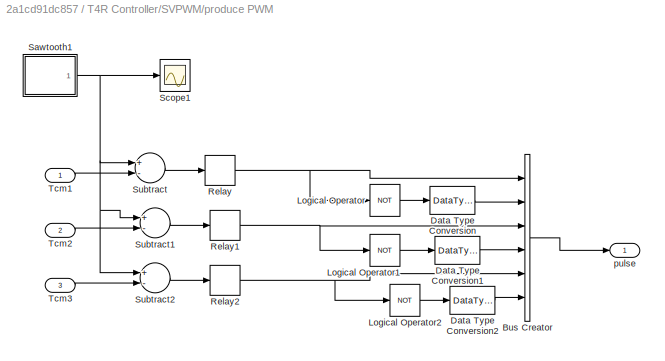
BLOCK [SubSystem] T4R Controller/SVPWM/produce PWM
  Ports = [3, 1]
  RequestExecContextInheritance = off
  Variant = off
BLOCK [BusCreator] T4R Controller/SVPWM/produce PWM/Bus Creator
  DisplayOption = bar
  InheritFromInputs = on
  Inputs = 6
  Ports = [6, 1]
BLOCK [DataTypeConversion] T4R Controller/SVPWM/produce PWM/Data Type Conversion
  OutDataTypeStr = double
  RndMeth = Floor
  SaturateOnIntegerOverflow = off
BLOCK [DataTypeConversion] T4R Controller/SVPWM/produce PWM/Data Type Conversion1
  OutDataTypeStr = double
  RndMeth = Floor
  SaturateOnIntegerOverflow = off
BLOCK [DataTypeConversion] T4R Controller/SVPWM/produce PWM/Data Type Conversion2
  OutDataTypeStr = double
  RndMeth = Floor
  SaturateOnIntegerOverflow = off
BLOCK [Logic] T4R Controller/SVPWM/produce PWM/Logical Operator
  AllPortsSameDT = off
  Operator = NOT
  Ports = [1, 1]
BLOCK [Logic] T4R Controller/SVPWM/produce PWM/Logical Operator1
  AllPortsSameDT = off
  Operator = NOT
  Ports = [1, 1]
BLOCK [Logic] T4R Controller/SVPWM/produce PWM/Logical Operator2
  AllPortsSameDT = off
  Operator = NOT
  Ports = [1, 1]
BLOCK [Relay] T4R Controller/SVPWM/produce PWM/Relay
BLOCK [Relay] T4R Controller/SVPWM/produce PWM/Relay1
BLOCK [Relay] T4R Controller/SVPWM/produce PWM/Relay2
BLOCK [SubSystem] T4R Controller/SVPWM/produce PWM/Sawtooth1
  Ports = [0, 1]
  RequestExecContextInheritance = off
  Variant = off
BLOCK [Integrator] T4R Controller/SVPWM/produce PWM/Sawtooth1/Integrator
  Ports = [1, 1]
BLOCK [DiscretePulseGenerator] T4R Controller/SVPWM/produce PWM/Sawtooth1/Pulse Generator
  Period = 0.0001
  Ports = [0, 1]
  PulseType = Time based
  PulseWidth = 50
BLOCK [Sum] T4R Controller/SVPWM/produce PWM/Sawtooth1/Sum1
  IconShape = round
  Inputs = -+|
  Ports = [2, 1]
BLOCK [Gain] T4R Controller/SVPWM/produce PWM/Sawtooth1/modulation index2
  Gain = 2
BLOCK [Constant] T4R Controller/SVPWM/produce PWM/Sawtooth1/pi//1
BLOCK [Outport] T4R Controller/SVPWM/produce PWM/Sawtooth1/pulses
  IconDisplay = Port number
BLOCK [Scope] T4R Controller/SVPWM/produce PWM/Scope1
  Ports = [1]
  ScopeSpecificationString = Simulink.scopes.TimeScopeBlockCfg('CurrentConfiguration', extmgr.ConfigurationSet(extmgr.Configuration('Core','General UI',true),extmgr.Configuration('Core','Source UI',true),extmgr.Configuration('Sources','WiredSimulink',true,'DataLoggingVariableName','ScopeData6','DataLoggingSaveFormat','StructureWithTime','DataLoggingDecimation','1','DataLoggingDecimateData',true),extmgr.Configuration('Visuals'...<+1656ch>
BLOCK [Sum] T4R Controller/SVPWM/produce PWM/Subtract
  InputSameDT = off
  Inputs = +-
  OutDataTypeStr = Inherit: Inherit via internal rule
  Ports = [2, 1]
  SaturateOnIntegerOverflow = off
BLOCK [Sum] T4R Controller/SVPWM/produce PWM/Subtract1
  InputSameDT = off
  Inputs = +-
  OutDataTypeStr = Inherit: Inherit via internal rule
  Ports = [2, 1]
  SaturateOnIntegerOverflow = off
BLOCK [Sum] T4R Controller/SVPWM/produce PWM/Subtract2
  InputSameDT = off
  Inputs = +-
  OutDataTypeStr = Inherit: Inherit via internal rule
  Ports = [2, 1]
  SaturateOnIntegerOverflow = off
BLOCK [Inport] T4R Controller/SVPWM/produce PWM/Tcm1
  IconDisplay = Port number
BLOCK [Inport] T4R Controller/SVPWM/produce PWM/Tcm2
  IconDisplay = Port number
  Port = 2
BLOCK [Inport] T4R Controller/SVPWM/produce PWM/Tcm3
  IconDisplay = Port number
  Port = 3
BLOCK [Outport] T4R Controller/SVPWM/produce PWM/pulse
  IconDisplay = Port number
BLOCK [Outport] T4R Controller/SVPWM/pulse
  IconDisplay = Port number
BLOCK [Inport] T4R Controller/Speed desired
  IconDisplay = Port number
BLOCK [Sum] T4R Controller/Sum
  IconShape = round
  InputSameDT = off
  Inputs = |+-
  OutDataTypeStr = Inherit: Inherit via internal rule
  Ports = [2, 1]
  SaturateOnIntegerOverflow = off
BLOCK [Sum] T4R Controller/Sum1
  IconShape = round
  InputSameDT = off
  Inputs = |+-
  OutDataTypeStr = Inherit: Inherit via internal rule
  Ports = [2, 1]
  SaturateOnIntegerOverflow = off
BLOCK [Sum] T4R Controller/Sum2
  IconShape = round
  InputSameDT = off
  Inputs = |+-
  OutDataTypeStr = Inherit: Inherit via internal rule
  Ports = [2, 1]
  SaturateOnIntegerOverflow = off
BLOCK [Sum] T4R Controller/Sum3
  IconShape = round
  InputSameDT = off
  Inputs = |+-
  OutDataTypeStr = Inherit: Inherit via internal rule
  Ports = [2, 1]
  SaturateOnIntegerOverflow = off
BLOCK [SubSystem] T4R Controller/Transformation uvw->ab->dq
  Ports = [4, 2]
  RequestExecContextInheritance = off
  Variant = off
BLOCK [Demux] T4R Controller/Transformation uvw->ab->dq/Demux
  DisplayOption = bar
  Outputs = 2
  Ports = [1, 2]
BLOCK [Fcn] T4R Controller/Transformation uvw->ab->dq/Fcn
  Expr = sin(u)
BLOCK [Fcn] T4R Controller/Transformation uvw->ab->dq/Fcn1
  Expr = cos(u)
BLOCK [Gain] T4R Controller/Transformation uvw->ab->dq/Gain1
BLOCK [Gain] T4R Controller/Transformation uvw->ab->dq/Gain2
BLOCK [Inport] T4R Controller/Transformation uvw->ab->dq/Ia
  IconDisplay = Port number
BLOCK [Inport] T4R Controller/Transformation uvw->ab->dq/Ib
  IconDisplay = Port number
  Port = 2
BLOCK [Inport] T4R Controller/Transformation uvw->ab->dq/Ic
  IconDisplay = Port number
  Port = 3
BLOCK [Outport] T4R Controller/Transformation uvw->ab->dq/Isd
  IconDisplay = Port number
BLOCK [Outport] T4R Controller/Transformation uvw->ab->dq/Isq
  IconDisplay = Port number
  Port = 2
BLOCK [Mux] T4R Controller/Transformation uvw->ab->dq/Mux
  DisplayOption = bar
  Ports = [4, 1]
BLOCK [Mux] T4R Controller/Transformation uvw->ab->dq/Mux1
  DisplayOption = bar
  Inputs = 3
  Ports = [3, 1]
BLOCK [Inport] T4R Controller/Transformation uvw->ab->dq/Teta
  IconDisplay = Port number
  Port = 4
BLOCK [SubSystem] T4R Controller/Transformation uvw->ab->dq/abc to Alpha-Beta-Zero
  AncestorBlock = powerlib_meascontrol/Transformations/abc to\nAlpha-Beta-Zero
  DialogController = POWERSYS.PowerSysDialog
  Ports = [1, 1]
  RequestExecContextInheritance = off
  Variant = off
BLOCK [Gain] T4R Controller/Transformation uvw->ab->dq/abc to Alpha-Beta-Zero/Gain3
  Gain = [ 1   -1/2   -1/2; 0   sqrt(3)/2   -sqrt(3)/2]
  Multiplication = Matrix(K*u) (u vector)
BLOCK [Inport] T4R Controller/Transformation uvw->ab->dq/abc to Alpha-Beta-Zero/abc
  IconDisplay = Port number
  PortDimensions = 3
BLOCK [Outport] T4R Controller/Transformation uvw->ab->dq/abc to Alpha-Beta-Zero/al_be
  IconDisplay = Port number
BLOCK [Fcn] T4R Controller/Transformation uvw->ab->dq/id
  Expr = u[1]*u[3]+u[2]*u[4]
BLOCK [Fcn] T4R Controller/Transformation uvw->ab->dq/iq
  Expr = -u[2]*u[3]+u[1]*u[4]
BLOCK [SubSystem] abc to Alpha-Beta-Zero
  AncestorBlock = powerlib_meascontrol/Transformations/abc to\nAlpha-Beta-Zero
  DialogController = POWERSYS.PowerSysDialog
  Ports = [1, 1]
  RequestExecContextInheritance = off
  Variant = off
BLOCK [Gain] abc to Alpha-Beta-Zero/Gain3
  Gain = [ 1   -1/2   -1/2; 0   sqrt(3)/2   -sqrt(3)/2]
  Multiplication = Matrix(K*u) (u vector)
BLOCK [Inport] abc to Alpha-Beta-Zero/abc
  IconDisplay = Port number
  PortDimensions = 3
BLOCK [Outport] abc to Alpha-Beta-Zero/al_be
  IconDisplay = Port number
ANNOTATION (root): Bo phat xung PWM cho mach inverter 3 pha
ANNOTATION (root): Bo dieu khien tua theo tu thong Rotor
ANNOTATION (root): Cac khoi su dung huong dan Sinh vien mo phong cho mon hoc: Dien tu cong suat, Truyen dong dien Giang vien: PGS. TS. Le Tien Dung Khoa Dien, truong Dai hoc Bach khoa - Dai hoc Da Nang
ANNOTATION (root): Mach dieu khien phat 6 xung don gian cho bo chinh luu cau 3 pha
ANNOTATION (root): Mach dieu khien phat xung don gian cho Inverter theo nguyen ly SVPWM
ANNOTATION Control circuit/Discription: Equation period = 1/fundamental frequency = 1/50 phase delay= (period*degree)/360 eg = ((0.02*60)/360)
ANNOTATION Control circuit/Discription: a=0 b=60 c=120 d=180 e=240 g=300
ANNOTATION SVPWM/Subsystem: -x
ANNOTATION SVPWM/Subsystem: -y
ANNOTATION SVPWM/Subsystem: -z
ANNOTATION SVPWM/Subsystem: T
ANNOTATION SVPWM/Subsystem: T1
ANNOTATION SVPWM/Subsystem: T2
ANNOTATION SVPWM/Subsystem: x
ANNOTATION SVPWM/Subsystem: y
ANNOTATION SVPWM/Subsystem: z
ANNOTATION SVPWM/Subsystem1: Ta
ANNOTATION SVPWM/Subsystem1: Tb
ANNOTATION SVPWM/Subsystem1: Tc
ANNOTATION SVPWM/Subsystem1: a
ANNOTATION SVPWM/Subsystem1: b
ANNOTATION SVPWM/Subsystem1: c
ANNOTATION T4R Controller: Cau truc dieu khien Tua theo tu thong rotor cho Dong co xoay chieu 3 pha Khong dong bo xay dung theo so do da hoc o lop Huong dan cho sinh vien lam Bai tap va Do an cua mon hoc: DIEU KHIEN TRUYEN DONG DIEN Luu y: Sinh vien can tu chinh dinh cac mach vong dieu chinh (cac bo dieu khien PID) de co ket qua dap ung tot. Giang vien: TS. Le Tien Dung Khoa Dien, truong Dai hoc Bach khoa - Dai hoc Da Nang
ANNOTATION T4R Controller/MHTT (Flux Midel)/Flux Observer: Lm = 34.7 mH
ANNOTATION T4R Controller/MHTT (Flux Midel)/Flux Observer: Lr = Ll'r +Lm = 0.8 +34.7= 35.5 mH
ANNOTATION T4R Controller/MHTT (Flux Midel)/Flux Observer: Phir = Lm *Id / (1 +Tr .s)
ANNOTATION T4R Controller/MHTT (Flux Midel)/Flux Observer: Rr = 0.228 ohms
ANNOTATION T4R Controller/MHTT (Flux Midel)/Flux Observer: Tr = Lr / Rr = 0.1557 s
ANNOTATION T4R Controller/MHTT (Flux Midel)/Teta Estimator: Teta= Electrical angle= integ ( wr + wm)
ANNOTATION T4R Controller/MHTT (Flux Midel)/Teta Estimator: Lm = 34.7 mH
ANNOTATION T4R Controller/MHTT (Flux Midel)/Teta Estimator: Lr = Ll'r +Lm = 0.8 +34.7= 35.5 mH
ANNOTATION T4R Controller/MHTT (Flux Midel)/Teta Estimator: Rr= 0.228 ohms
ANNOTATION T4R Controller/MHTT (Flux Midel)/Teta Estimator: Tr = Lr / Rr = 0.1557 s
ANNOTATION T4R Controller/MHTT (Flux Midel)/Teta Estimator: wm= Rotor mechanical speed (rad/s)
ANNOTATION T4R Controller/MHTT (Flux Midel)/Teta Estimator: wr = Rotor frequency (rad/s) = Lm *Iq / ( Tr * Phir)
ANNOTATION T4R Controller/SVPWM/Subsystem: -x
ANNOTATION T4R Controller/SVPWM/Subsystem: -y
ANNOTATION T4R Controller/SVPWM/Subsystem: -z
ANNOTATION T4R Controller/SVPWM/Subsystem: T
ANNOTATION T4R Controller/SVPWM/Subsystem: T1
ANNOTATION T4R Controller/SVPWM/Subsystem: T2
ANNOTATION T4R Controller/SVPWM/Subsystem: x
ANNOTATION T4R Controller/SVPWM/Subsystem: y
ANNOTATION T4R Controller/SVPWM/Subsystem: z
ANNOTATION T4R Controller/SVPWM/Subsystem1: Ta
ANNOTATION T4R Controller/SVPWM/Subsystem1: Tb
ANNOTATION T4R Controller/SVPWM/Subsystem1: Tc
ANNOTATION T4R Controller/SVPWM/Subsystem1: a
ANNOTATION T4R Controller/SVPWM/Subsystem1: b
ANNOTATION T4R Controller/SVPWM/Subsystem1: c
LINE Control circuit/P1:1 -> Control circuit/T1:1
LINE Control circuit/P2:1 -> Control circuit/T2:1
LINE Control circuit/P3:1 -> Control circuit/T3:1
LINE Control circuit/P4:1 -> Control circuit/T4:1
LINE Control circuit/P5:1 -> Control circuit/T5:1
LINE Control circuit/P6:1 -> Control circuit/T6:1
LINE Demux1:1 -> SVPWM:1
LINE Demux1:2 -> SVPWM:2
LINE Mux2:1 -> abc to Alpha-Beta-Zero:1
NET SVPWM/N1/Constant1:1 -> SVPWM/N1/Switch1:3, SVPWM/N1/Switch2:3, SVPWM/N1/Switch:3
NET SVPWM/N1/Constant:1 -> SVPWM/N1/Switch1:1, SVPWM/N1/Switch2:1, SVPWM/N1/Switch:1
LINE SVPWM/N1/Gain1:1 -> SVPWM/N1/Sum1:2
LINE SVPWM/N1/Gain2:1 -> SVPWM/N1/Sum2:2
LINE SVPWM/N1/Gain3:1 -> SVPWM/N1/Sum2:3
LINE SVPWM/N1/Gain:1 -> SVPWM/N1/Sum:2
LINE SVPWM/N1/Sum1:1 -> SVPWM/N1/Switch2:2
LINE SVPWM/N1/Sum2:1 -> SVPWM/N1/N:1
LINE SVPWM/N1/Sum:1 -> SVPWM/N1/Switch1:2
LINE SVPWM/N1/Switch1:1 -> SVPWM/N1/Gain2:1
LINE SVPWM/N1/Switch2:1 -> SVPWM/N1/Gain3:1
LINE SVPWM/N1/Switch:1 -> SVPWM/N1/Sum2:1
NET SVPWM/N1/Ualpha:1 -> SVPWM/N1/Gain1:1, SVPWM/N1/Gain:1
NET SVPWM/N1/Ubeta:1 -> SVPWM/N1/Sum1:1, SVPWM/N1/Sum:1, SVPWM/N1/Switch:2
NET SVPWM/N1:1 -> SVPWM/Scope1:1, SVPWM/Subsystem1:4, SVPWM/Subsystem:1
NET SVPWM/Subsystem/    :1 -> SVPWM/Subsystem/Multiport Switch1:7, SVPWM/Subsystem/Multiport Switch:4
NET SVPWM/Subsystem/  :1 -> SVPWM/Subsystem/Multiport Switch1:6, SVPWM/Subsystem/Multiport Switch:7
NET SVPWM/Subsystem/ :1 -> SVPWM/Subsystem/Multiport Switch1:3, SVPWM/Subsystem/Multiport Switch:5
LINE SVPWM/Subsystem/Fcn1:1 -> SVPWM/Subsystem/Switch:3
LINE SVPWM/Subsystem/Fcn2:1 -> SVPWM/Subsystem/Switch1:3
NET SVPWM/Subsystem/Fcn:1 -> SVPWM/Subsystem/Switch1:2, SVPWM/Subsystem/Switch:2
NET SVPWM/Subsystem/Multiport Switch1:1 -> SVPWM/Subsystem/Mux:2, SVPWM/Subsystem/Switch1:1
NET SVPWM/Subsystem/Multiport Switch:1 -> SVPWM/Subsystem/Mux:1, SVPWM/Subsystem/Switch:1
NET SVPWM/Subsystem/Mux:1 -> SVPWM/Subsystem/Fcn1:1, SVPWM/Subsystem/Fcn2:1, SVPWM/Subsystem/Fcn:1
NET SVPWM/Subsystem/N:1 -> SVPWM/Subsystem/Multiport Switch1:1, SVPWM/Subsystem/Multiport Switch:1
LINE SVPWM/Subsystem/Switch1:1 -> SVPWM/Subsystem/T2:1
LINE SVPWM/Subsystem/Switch:1 -> SVPWM/Subsystem/T1:1
LINE SVPWM/Subsystem/T:1 -> SVPWM/Subsystem/Mux:3
NET SVPWM/Subsystem/X:1 -> SVPWM/Subsystem/ :1, SVPWM/Subsystem/Multiport Switch1:4, SVPWM/Subsystem/Multiport Switch:6
NET SVPWM/Subsystem/Y:1 -> SVPWM/Subsystem/  :1, SVPWM/Subsystem/Multiport Switch1:2, SVPWM/Subsystem/Multiport Switch:3
NET SVPWM/Subsystem/Z:1 -> SVPWM/Subsystem/    :1, SVPWM/Subsystem/Multiport Switch1:5, SVPWM/Subsystem/Multiport Switch:2
NET SVPWM/Subsystem1/Gain1:1 -> SVPWM/Subsystem1/Multiport Switch1:2, SVPWM/Subsystem1/Multiport Switch1:6, SVPWM/Subsystem1/Multiport Switch2:5, SVPWM/Subsystem1/Multiport Switch2:7, SVPWM/Subsystem1/Multiport Switch:3, SVPWM/Subsystem1/Multiport Switch:4, SVPWM/Subsystem1/Subtract2:2
LINE SVPWM/Subsystem1/Gain2:1 -> SVPWM/Subsystem1/Subtract3:1
LINE SVPWM/Subsystem1/Gain3:1 -> SVPWM/Subsystem1/Subtract2:1
LINE SVPWM/Subsystem1/Multiport Switch1:1 -> SVPWM/Subsystem1/Tcm2:1
LINE SVPWM/Subsystem1/Multiport Switch2:1 -> SVPWM/Subsystem1/Tcm3:1
LINE SVPWM/Subsystem1/Multiport Switch:1 -> SVPWM/Subsystem1/Tcm1:1
NET SVPWM/Subsystem1/N:1 -> SVPWM/Subsystem1/Multiport Switch1:1, SVPWM/Subsystem1/Multiport Switch2:1, SVPWM/Subsystem1/Multiport Switch:1
LINE SVPWM/Subsystem1/Subtract1:1 -> SVPWM/Subsystem1/Gain1:1
NET SVPWM/Subsystem1/Subtract2:1 -> SVPWM/Subsystem1/Multiport Switch1:4, SVPWM/Subsystem1/Multiport Switch1:5, SVPWM/Subsystem1/Multiport Switch2:3, SVPWM/Subsystem1/Multiport Switch2:6, SVPWM/Subsystem1/Multiport Switch:2, SVPWM/Subsystem1/Multiport Switch:7, SVPWM/Subsystem1/Subtract3:2
NET SVPWM/Subsystem1/Subtract3:1 -> SVPWM/Subsystem1/Multiport Switch1:3, SVPWM/Subsystem1/Multiport Switch1:7, SVPWM/Subsystem1/Multiport Switch2:2, SVPWM/Subsystem1/Multiport Switch2:4, SVPWM/Subsystem1/Multiport Switch:5, SVPWM/Subsystem1/Multiport Switch:6
NET SVPWM/Subsystem1/T1:1 -> SVPWM/Subsystem1/Gain3:1, SVPWM/Subsystem1/Subtract1:1
NET SVPWM/Subsystem1/T2:1 -> SVPWM/Subsystem1/Gain2:1, SVPWM/Subsystem1/Subtract1:2
LINE SVPWM/Subsystem1/T:1 -> SVPWM/Subsystem1/Subtract1:3
NET SVPWM/Subsystem1:1 -> SVPWM/Scope:1, SVPWM/produce PWM:1
LINE SVPWM/Subsystem1:2 -> SVPWM/produce PWM:2
LINE SVPWM/Subsystem1:3 -> SVPWM/produce PWM:3
NET SVPWM/Subsystem:1 -> SVPWM/Scope6:1, SVPWM/Subsystem1:1
LINE SVPWM/Subsystem:2 -> SVPWM/Subsystem1:2
NET SVPWM/T:1 -> SVPWM/Subsystem1:3, SVPWM/Subsystem:5, SVPWM/X.Y.Z:1
NET SVPWM/Ualpha:1 -> SVPWM/N1:1, SVPWM/Scope3:1, SVPWM/X.Y.Z:2
NET SVPWM/Ubeta:1 -> SVPWM/N1:2, SVPWM/Scope3:2, SVPWM/X.Y.Z:3
LINE SVPWM/Udc:1 -> SVPWM/X.Y.Z:4
LINE SVPWM/X.Y.Z/Divide1:1 -> SVPWM/X.Y.Z/Gain2:1
LINE SVPWM/X.Y.Z/Divide2:1 -> SVPWM/X.Y.Z/Gain3:1
LINE SVPWM/X.Y.Z/Divide:1 -> SVPWM/X.Y.Z/X:1
LINE SVPWM/X.Y.Z/Gain1:1 -> SVPWM/X.Y.Z/Divide:1
LINE SVPWM/X.Y.Z/Gain2:1 -> SVPWM/X.Y.Z/Y:1
LINE SVPWM/X.Y.Z/Gain3:1 -> SVPWM/X.Y.Z/Z:1
NET SVPWM/X.Y.Z/Gain:1 -> SVPWM/X.Y.Z/Subtract1:1, SVPWM/X.Y.Z/Subtract:1
LINE SVPWM/X.Y.Z/Subtract1:1 -> SVPWM/X.Y.Z/Divide2:1
LINE SVPWM/X.Y.Z/Subtract:1 -> SVPWM/X.Y.Z/Divide1:1
NET SVPWM/X.Y.Z/T:1 -> SVPWM/X.Y.Z/Divide1:2, SVPWM/X.Y.Z/Divide2:2, SVPWM/X.Y.Z/Divide:2
NET SVPWM/X.Y.Z/Ualfa:1 -> SVPWM/X.Y.Z/Subtract1:2, SVPWM/X.Y.Z/Subtract:2
NET SVPWM/X.Y.Z/Ubeta:1 -> SVPWM/X.Y.Z/Gain1:1, SVPWM/X.Y.Z/Gain:1
NET SVPWM/X.Y.Z/Udc:1 -> SVPWM/X.Y.Z/Divide1:3, SVPWM/X.Y.Z/Divide2:3, SVPWM/X.Y.Z/Divide:3
LINE SVPWM/X.Y.Z:1 -> SVPWM/Subsystem:2
LINE SVPWM/X.Y.Z:2 -> SVPWM/Subsystem:3
LINE SVPWM/X.Y.Z:3 -> SVPWM/Subsystem:4
LINE SVPWM/produce PWM/Bus Creator:1 -> SVPWM/produce PWM/pulse:1
LINE SVPWM/produce PWM/Data Type Conversion1:1 -> SVPWM/produce PWM/Bus Creator:4
LINE SVPWM/produce PWM/Data Type Conversion2:1 -> SVPWM/produce PWM/Bus Creator:6
LINE SVPWM/produce PWM/Data Type Conversion:1 -> SVPWM/produce PWM/Bus Creator:2
LINE SVPWM/produce PWM/Logical Operator1:1 -> SVPWM/produce PWM/Data Type Conversion1:1
LINE SVPWM/produce PWM/Logical Operator2:1 -> SVPWM/produce PWM/Data Type Conversion2:1
LINE SVPWM/produce PWM/Logical Operator:1 -> SVPWM/produce PWM/Data Type Conversion:1
NET SVPWM/produce PWM/Relay1:1 -> SVPWM/produce PWM/Bus Creator:3, SVPWM/produce PWM/Logical Operator1:1
NET SVPWM/produce PWM/Relay2:1 -> SVPWM/produce PWM/Bus Creator:5, SVPWM/produce PWM/Logical Operator2:1
NET SVPWM/produce PWM/Relay:1 -> SVPWM/produce PWM/Bus Creator:1, SVPWM/produce PWM/Logical Operator:1
LINE SVPWM/produce PWM/Sawtooth1/Integrator:1 -> SVPWM/produce PWM/Sawtooth1/pulses:1
LINE SVPWM/produce PWM/Sawtooth1/Pulse Generator:1 -> SVPWM/produce PWM/Sawtooth1/modulation index2:1
LINE SVPWM/produce PWM/Sawtooth1/Sum1:1 -> SVPWM/produce PWM/Sawtooth1/Integrator:1
LINE SVPWM/produce PWM/Sawtooth1/modulation index2:1 -> SVPWM/produce PWM/Sawtooth1/Sum1:2
LINE SVPWM/produce PWM/Sawtooth1/pi//1:1 -> SVPWM/produce PWM/Sawtooth1/Sum1:1
NET SVPWM/produce PWM/Sawtooth1:1 -> SVPWM/produce PWM/Scope1:1, SVPWM/produce PWM/Subtract1:1, SVPWM/produce PWM/Subtract2:1, SVPWM/produce PWM/Subtract:1
LINE SVPWM/produce PWM/Subtract1:1 -> SVPWM/produce PWM/Relay1:1
LINE SVPWM/produce PWM/Subtract2:1 -> SVPWM/produce PWM/Relay2:1
LINE SVPWM/produce PWM/Subtract:1 -> SVPWM/produce PWM/Relay:1
LINE SVPWM/produce PWM/Tcm1:1 -> SVPWM/produce PWM/Subtract:2
LINE SVPWM/produce PWM/Tcm2:1 -> SVPWM/produce PWM/Subtract1:2
LINE SVPWM/produce PWM/Tcm3:1 -> SVPWM/produce PWM/Subtract2:2
LINE SVPWM/produce PWM:1 -> SVPWM/pulse:1
LINE Sine Wave1:1 -> Mux2:2
LINE Sine Wave2:1 -> Mux2:3
LINE Sine Wave:1 -> Mux2:1
LINE T4R Controller/Constant:1 -> T4R Controller/Sum2:1
LINE T4R Controller/Demux:1 -> T4R Controller/Transformation uvw->ab->dq:1
LINE T4R Controller/Demux:2 -> T4R Controller/Transformation uvw->ab->dq:2
LINE T4R Controller/Demux:3 -> T4R Controller/Transformation uvw->ab->dq:3
NET T4R Controller/Feedback Speed:1 -> T4R Controller/MHTT (Flux Midel):2, T4R Controller/Sum:2
LINE T4R Controller/Iabc:1 -> T4R Controller/Demux:1
LINE T4R Controller/Inverse Park/3to2_alpha:1 -> T4R Controller/Inverse Park/usalpha:1
LINE T4R Controller/Inverse Park/3to2_beta:1 -> T4R Controller/Inverse Park/usbeta:1
LINE T4R Controller/Inverse Park/Fcn1:1 -> T4R Controller/Inverse Park/Mux1:1
LINE T4R Controller/Inverse Park/Fcn:1 -> T4R Controller/Inverse Park/Mux1:2
LINE T4R Controller/Inverse Park/Gain2:1 -> T4R Controller/Inverse Park/Mux3:1
LINE T4R Controller/Inverse Park/Gain3:1 -> T4R Controller/Inverse Park/Mux3:2
LINE T4R Controller/Inverse Park/Gain4:1 -> T4R Controller/Inverse Park/Mux3:3
NET T4R Controller/Inverse Park/Mux1:1 -> T4R Controller/Inverse Park/ia:1, T4R Controller/Inverse Park/ib:1
NET T4R Controller/Inverse Park/Mux3:1 -> T4R Controller/Inverse Park/3to2_alpha:1, T4R Controller/Inverse Park/3to2_beta:1
NET T4R Controller/Inverse Park/Teta:1 -> T4R Controller/Inverse Park/Fcn1:1, T4R Controller/Inverse Park/Fcn:1
LINE T4R Controller/Inverse Park/d:1 -> T4R Controller/Inverse Park/Mux1:4
NET T4R Controller/Inverse Park/ia:1 -> T4R Controller/Inverse Park/Gain2:1, T4R Controller/Inverse Park/ic:2
NET T4R Controller/Inverse Park/ib:1 -> T4R Controller/Inverse Park/Gain3:1, T4R Controller/Inverse Park/ic:1
LINE T4R Controller/Inverse Park/ic:1 -> T4R Controller/Inverse Park/Gain4:1
LINE T4R Controller/Inverse Park/q:1 -> T4R Controller/Inverse Park/Mux1:3
LINE T4R Controller/Inverse Park:1 -> T4R Controller/SVPWM:1
LINE T4R Controller/Inverse Park:2 -> T4R Controller/SVPWM:2
LINE T4R Controller/MHTT (Flux Midel)/Flux Observer/Discrete Tranfer Function/Discrete Transfer Fcn:1 -> T4R Controller/MHTT (Flux Midel)/Flux Observer/Discrete Tranfer Function/Out:1
LINE T4R Controller/MHTT (Flux Midel)/Flux Observer/Discrete Tranfer Function/In:1 -> T4R Controller/MHTT (Flux Midel)/Flux Observer/Discrete Tranfer Function/Discrete Transfer Fcn:1
LINE T4R Controller/MHTT (Flux Midel)/Flux Observer/Discrete Tranfer Function:1 -> T4R Controller/MHTT (Flux Midel)/Flux Observer/Phir:1
LINE T4R Controller/MHTT (Flux Midel)/Flux Observer/Id:1 -> T4R Controller/MHTT (Flux Midel)/Flux Observer/Lm:1
LINE T4R Controller/MHTT (Flux Midel)/Flux Observer/Lm:1 -> T4R Controller/MHTT (Flux Midel)/Flux Observer/Discrete Tranfer Function:1
NET T4R Controller/MHTT (Flux Midel)/Flux Observer:1 -> T4R Controller/MHTT (Flux Midel)/Psir:1, T4R Controller/MHTT (Flux Midel)/Teta Estimator:1
LINE T4R Controller/MHTT (Flux Midel)/Isd:1 -> T4R Controller/MHTT (Flux Midel)/Unit Delay:1
LINE T4R Controller/MHTT (Flux Midel)/Isq:1 -> T4R Controller/MHTT (Flux Midel)/Unit Delay1:1
LINE T4R Controller/MHTT (Flux Midel)/Teta Estimator/Discrete-Time Integrator:1 -> T4R Controller/MHTT (Flux Midel)/Teta Estimator/Teta:1
LINE T4R Controller/MHTT (Flux Midel)/Teta Estimator/Fcn:1 -> T4R Controller/MHTT (Flux Midel)/Teta Estimator/Gain2:1
LINE T4R Controller/MHTT (Flux Midel)/Teta Estimator/Gain2:1 -> T4R Controller/MHTT (Flux Midel)/Teta Estimator/Sum:1
LINE T4R Controller/MHTT (Flux Midel)/Teta Estimator/Gain3:1 -> T4R Controller/MHTT (Flux Midel)/Teta Estimator/Sum:2
LINE T4R Controller/MHTT (Flux Midel)/Teta Estimator/Iq:1 -> T4R Controller/MHTT (Flux Midel)/Teta Estimator/Mux1:1
LINE T4R Controller/MHTT (Flux Midel)/Teta Estimator/Mux1:1 -> T4R Controller/MHTT (Flux Midel)/Teta Estimator/Fcn:1
LINE T4R Controller/MHTT (Flux Midel)/Teta Estimator/Phird:1 -> T4R Controller/MHTT (Flux Midel)/Teta Estimator/Mux1:2
LINE T4R Controller/MHTT (Flux Midel)/Teta Estimator/Sum:1 -> T4R Controller/MHTT (Flux Midel)/Teta Estimator/Discrete-Time Integrator:1
LINE T4R Controller/MHTT (Flux Midel)/Teta Estimator/wm:1 -> T4R Controller/MHTT (Flux Midel)/Teta Estimator/Gain3:1
LINE T4R Controller/MHTT (Flux Midel)/Teta Estimator:1 -> T4R Controller/MHTT (Flux Midel)/Teta:1
LINE T4R Controller/MHTT (Flux Midel)/Unit Delay1:1 -> T4R Controller/MHTT (Flux Midel)/Teta Estimator:3
LINE T4R Controller/MHTT (Flux Midel)/Unit Delay:1 -> T4R Controller/MHTT (Flux Midel)/Flux Observer:1
LINE T4R Controller/MHTT (Flux Midel)/wm:1 -> T4R Controller/MHTT (Flux Midel)/Teta Estimator:2
NET T4R Controller/MHTT (Flux Midel):1 -> T4R Controller/Inverse Park:3, T4R Controller/Transformation uvw->ab->dq:4
LINE T4R Controller/MHTT (Flux Midel):2 -> T4R Controller/Sum2:2
LINE T4R Controller/RI1:1 -> T4R Controller/Inverse Park:1
LINE T4R Controller/RI2:1 -> T4R Controller/Inverse Park:2
LINE T4R Controller/RPsir:1 -> T4R Controller/Sum3:1
LINE T4R Controller/Rw:1 -> T4R Controller/Sum1:1
NET T4R Controller/SVPWM/N1/Constant1:1 -> T4R Controller/SVPWM/N1/Switch1:3, T4R Controller/SVPWM/N1/Switch2:3, T4R Controller/SVPWM/N1/Switch:3
NET T4R Controller/SVPWM/N1/Constant:1 -> T4R Controller/SVPWM/N1/Switch1:1, T4R Controller/SVPWM/N1/Switch2:1, T4R Controller/SVPWM/N1/Switch:1
LINE T4R Controller/SVPWM/N1/Gain1:1 -> T4R Controller/SVPWM/N1/Sum1:2
LINE T4R Controller/SVPWM/N1/Gain2:1 -> T4R Controller/SVPWM/N1/Sum2:2
LINE T4R Controller/SVPWM/N1/Gain3:1 -> T4R Controller/SVPWM/N1/Sum2:3
LINE T4R Controller/SVPWM/N1/Gain:1 -> T4R Controller/SVPWM/N1/Sum:2
LINE T4R Controller/SVPWM/N1/Sum1:1 -> T4R Controller/SVPWM/N1/Switch2:2
LINE T4R Controller/SVPWM/N1/Sum2:1 -> T4R Controller/SVPWM/N1/N:1
LINE T4R Controller/SVPWM/N1/Sum:1 -> T4R Controller/SVPWM/N1/Switch1:2
LINE T4R Controller/SVPWM/N1/Switch1:1 -> T4R Controller/SVPWM/N1/Gain2:1
LINE T4R Controller/SVPWM/N1/Switch2:1 -> T4R Controller/SVPWM/N1/Gain3:1
LINE T4R Controller/SVPWM/N1/Switch:1 -> T4R Controller/SVPWM/N1/Sum2:1
NET T4R Controller/SVPWM/N1/Ualpha:1 -> T4R Controller/SVPWM/N1/Gain1:1, T4R Controller/SVPWM/N1/Gain:1
NET T4R Controller/SVPWM/N1/Ubeta:1 -> T4R Controller/SVPWM/N1/Sum1:1, T4R Controller/SVPWM/N1/Sum:1, T4R Controller/SVPWM/N1/Switch:2
NET T4R Controller/SVPWM/N1:1 -> T4R Controller/SVPWM/Scope1:1, T4R Controller/SVPWM/Subsystem1:4, T4R Controller/SVPWM/Subsystem:1
NET T4R Controller/SVPWM/Subsystem/    :1 -> T4R Controller/SVPWM/Subsystem/Multiport Switch1:7, T4R Controller/SVPWM/Subsystem/Multiport Switch:4
NET T4R Controller/SVPWM/Subsystem/  :1 -> T4R Controller/SVPWM/Subsystem/Multiport Switch1:6, T4R Controller/SVPWM/Subsystem/Multiport Switch:7
NET T4R Controller/SVPWM/Subsystem/ :1 -> T4R Controller/SVPWM/Subsystem/Multiport Switch1:3, T4R Controller/SVPWM/Subsystem/Multiport Switch:5
LINE T4R Controller/SVPWM/Subsystem/Fcn1:1 -> T4R Controller/SVPWM/Subsystem/Switch:3
LINE T4R Controller/SVPWM/Subsystem/Fcn2:1 -> T4R Controller/SVPWM/Subsystem/Switch1:3
NET T4R Controller/SVPWM/Subsystem/Fcn:1 -> T4R Controller/SVPWM/Subsystem/Switch1:2, T4R Controller/SVPWM/Subsystem/Switch:2
NET T4R Controller/SVPWM/Subsystem/Multiport Switch1:1 -> T4R Controller/SVPWM/Subsystem/Mux:2, T4R Controller/SVPWM/Subsystem/Switch1:1
NET T4R Controller/SVPWM/Subsystem/Multiport Switch:1 -> T4R Controller/SVPWM/Subsystem/Mux:1, T4R Controller/SVPWM/Subsystem/Switch:1
NET T4R Controller/SVPWM/Subsystem/Mux:1 -> T4R Controller/SVPWM/Subsystem/Fcn1:1, T4R Controller/SVPWM/Subsystem/Fcn2:1, T4R Controller/SVPWM/Subsystem/Fcn:1
NET T4R Controller/SVPWM/Subsystem/N:1 -> T4R Controller/SVPWM/Subsystem/Multiport Switch1:1, T4R Controller/SVPWM/Subsystem/Multiport Switch:1
LINE T4R Controller/SVPWM/Subsystem/Switch1:1 -> T4R Controller/SVPWM/Subsystem/T2:1
LINE T4R Controller/SVPWM/Subsystem/Switch:1 -> T4R Controller/SVPWM/Subsystem/T1:1
LINE T4R Controller/SVPWM/Subsystem/T:1 -> T4R Controller/SVPWM/Subsystem/Mux:3
NET T4R Controller/SVPWM/Subsystem/X:1 -> T4R Controller/SVPWM/Subsystem/ :1, T4R Controller/SVPWM/Subsystem/Multiport Switch1:4, T4R Controller/SVPWM/Subsystem/Multiport Switch:6
NET T4R Controller/SVPWM/Subsystem/Y:1 -> T4R Controller/SVPWM/Subsystem/  :1, T4R Controller/SVPWM/Subsystem/Multiport Switch1:2, T4R Controller/SVPWM/Subsystem/Multiport Switch:3
NET T4R Controller/SVPWM/Subsystem/Z:1 -> T4R Controller/SVPWM/Subsystem/    :1, T4R Controller/SVPWM/Subsystem/Multiport Switch1:5, T4R Controller/SVPWM/Subsystem/Multiport Switch:2
NET T4R Controller/SVPWM/Subsystem1/Gain1:1 -> T4R Controller/SVPWM/Subsystem1/Multiport Switch1:2, T4R Controller/SVPWM/Subsystem1/Multiport Switch1:6, T4R Controller/SVPWM/Subsystem1/Multiport Switch2:5, T4R Controller/SVPWM/Subsystem1/Multiport Switch2:7, T4R Controller/SVPWM/Subsystem1/Multiport Switch:3, T4R Controller/SVPWM/Subsystem1/Multiport Switch:4, T4R Controller/SVPWM/Subsystem1/Subtract2:2
LINE T4R Controller/SVPWM/Subsystem1/Gain2:1 -> T4R Controller/SVPWM/Subsystem1/Subtract3:1
LINE T4R Controller/SVPWM/Subsystem1/Gain3:1 -> T4R Controller/SVPWM/Subsystem1/Subtract2:1
LINE T4R Controller/SVPWM/Subsystem1/Multiport Switch1:1 -> T4R Controller/SVPWM/Subsystem1/Tcm2:1
LINE T4R Controller/SVPWM/Subsystem1/Multiport Switch2:1 -> T4R Controller/SVPWM/Subsystem1/Tcm3:1
LINE T4R Controller/SVPWM/Subsystem1/Multiport Switch:1 -> T4R Controller/SVPWM/Subsystem1/Tcm1:1
NET T4R Controller/SVPWM/Subsystem1/N:1 -> T4R Controller/SVPWM/Subsystem1/Multiport Switch1:1, T4R Controller/SVPWM/Subsystem1/Multiport Switch2:1, T4R Controller/SVPWM/Subsystem1/Multiport Switch:1
LINE T4R Controller/SVPWM/Subsystem1/Subtract1:1 -> T4R Controller/SVPWM/Subsystem1/Gain1:1
NET T4R Controller/SVPWM/Subsystem1/Subtract2:1 -> T4R Controller/SVPWM/Subsystem1/Multiport Switch1:4, T4R Controller/SVPWM/Subsystem1/Multiport Switch1:5, T4R Controller/SVPWM/Subsystem1/Multiport Switch2:3, T4R Controller/SVPWM/Subsystem1/Multiport Switch2:6, T4R Controller/SVPWM/Subsystem1/Multiport Switch:2, T4R Controller/SVPWM/Subsystem1/Multiport Switch:7, T4R Controller/SVPWM/Subsystem1/Subtract3:2
NET T4R Controller/SVPWM/Subsystem1/Subtract3:1 -> T4R Controller/SVPWM/Subsystem1/Multiport Switch1:3, T4R Controller/SVPWM/Subsystem1/Multiport Switch1:7, T4R Controller/SVPWM/Subsystem1/Multiport Switch2:2, T4R Controller/SVPWM/Subsystem1/Multiport Switch2:4, T4R Controller/SVPWM/Subsystem1/Multiport Switch:5, T4R Controller/SVPWM/Subsystem1/Multiport Switch:6
NET T4R Controller/SVPWM/Subsystem1/T1:1 -> T4R Controller/SVPWM/Subsystem1/Gain3:1, T4R Controller/SVPWM/Subsystem1/Subtract1:1
NET T4R Controller/SVPWM/Subsystem1/T2:1 -> T4R Controller/SVPWM/Subsystem1/Gain2:1, T4R Controller/SVPWM/Subsystem1/Subtract1:2
LINE T4R Controller/SVPWM/Subsystem1/T:1 -> T4R Controller/SVPWM/Subsystem1/Subtract1:3
NET T4R Controller/SVPWM/Subsystem1:1 -> T4R Controller/SVPWM/Scope:1, T4R Controller/SVPWM/produce PWM:1
LINE T4R Controller/SVPWM/Subsystem1:2 -> T4R Controller/SVPWM/produce PWM:2
LINE T4R Controller/SVPWM/Subsystem1:3 -> T4R Controller/SVPWM/produce PWM:3
NET T4R Controller/SVPWM/Subsystem:1 -> T4R Controller/SVPWM/Scope6:1, T4R Controller/SVPWM/Subsystem1:1
LINE T4R Controller/SVPWM/Subsystem:2 -> T4R Controller/SVPWM/Subsystem1:2
NET T4R Controller/SVPWM/T:1 -> T4R Controller/SVPWM/Subsystem1:3, T4R Controller/SVPWM/Subsystem:5, T4R Controller/SVPWM/X.Y.Z:1
NET T4R Controller/SVPWM/Ualpha:1 -> T4R Controller/SVPWM/N1:1, T4R Controller/SVPWM/Scope3:1, T4R Controller/SVPWM/X.Y.Z:2
NET T4R Controller/SVPWM/Ubeta:1 -> T4R Controller/SVPWM/N1:2, T4R Controller/SVPWM/Scope3:2, T4R Controller/SVPWM/X.Y.Z:3
LINE T4R Controller/SVPWM/Udc:1 -> T4R Controller/SVPWM/X.Y.Z:4
LINE T4R Controller/SVPWM/X.Y.Z/Divide1:1 -> T4R Controller/SVPWM/X.Y.Z/Gain2:1
LINE T4R Controller/SVPWM/X.Y.Z/Divide2:1 -> T4R Controller/SVPWM/X.Y.Z/Gain3:1
LINE T4R Controller/SVPWM/X.Y.Z/Divide:1 -> T4R Controller/SVPWM/X.Y.Z/X:1
LINE T4R Controller/SVPWM/X.Y.Z/Gain1:1 -> T4R Controller/SVPWM/X.Y.Z/Divide:1
LINE T4R Controller/SVPWM/X.Y.Z/Gain2:1 -> T4R Controller/SVPWM/X.Y.Z/Y:1
LINE T4R Controller/SVPWM/X.Y.Z/Gain3:1 -> T4R Controller/SVPWM/X.Y.Z/Z:1
NET T4R Controller/SVPWM/X.Y.Z/Gain:1 -> T4R Controller/SVPWM/X.Y.Z/Subtract1:1, T4R Controller/SVPWM/X.Y.Z/Subtract:1
LINE T4R Controller/SVPWM/X.Y.Z/Subtract1:1 -> T4R Controller/SVPWM/X.Y.Z/Divide2:1
LINE T4R Controller/SVPWM/X.Y.Z/Subtract:1 -> T4R Controller/SVPWM/X.Y.Z/Divide1:1
NET T4R Controller/SVPWM/X.Y.Z/T:1 -> T4R Controller/SVPWM/X.Y.Z/Divide1:2, T4R Controller/SVPWM/X.Y.Z/Divide2:2, T4R Controller/SVPWM/X.Y.Z/Divide:2
NET T4R Controller/SVPWM/X.Y.Z/Ualfa:1 -> T4R Controller/SVPWM/X.Y.Z/Subtract1:2, T4R Controller/SVPWM/X.Y.Z/Subtract:2
NET T4R Controller/SVPWM/X.Y.Z/Ubeta:1 -> T4R Controller/SVPWM/X.Y.Z/Gain1:1, T4R Controller/SVPWM/X.Y.Z/Gain:1
NET T4R Controller/SVPWM/X.Y.Z/Udc:1 -> T4R Controller/SVPWM/X.Y.Z/Divide1:3, T4R Controller/SVPWM/X.Y.Z/Divide2:3, T4R Controller/SVPWM/X.Y.Z/Divide:3
LINE T4R Controller/SVPWM/X.Y.Z:1 -> T4R Controller/SVPWM/Subsystem:2
LINE T4R Controller/SVPWM/X.Y.Z:2 -> T4R Controller/SVPWM/Subsystem:3
LINE T4R Controller/SVPWM/X.Y.Z:3 -> T4R Controller/SVPWM/Subsystem:4
LINE T4R Controller/SVPWM/produce PWM/Bus Creator:1 -> T4R Controller/SVPWM/produce PWM/pulse:1
LINE T4R Controller/SVPWM/produce PWM/Data Type Conversion1:1 -> T4R Controller/SVPWM/produce PWM/Bus Creator:4
LINE T4R Controller/SVPWM/produce PWM/Data Type Conversion2:1 -> T4R Controller/SVPWM/produce PWM/Bus Creator:6
LINE T4R Controller/SVPWM/produce PWM/Data Type Conversion:1 -> T4R Controller/SVPWM/produce PWM/Bus Creator:2
LINE T4R Controller/SVPWM/produce PWM/Logical Operator1:1 -> T4R Controller/SVPWM/produce PWM/Data Type Conversion1:1
LINE T4R Controller/SVPWM/produce PWM/Logical Operator2:1 -> T4R Controller/SVPWM/produce PWM/Data Type Conversion2:1
LINE T4R Controller/SVPWM/produce PWM/Logical Operator:1 -> T4R Controller/SVPWM/produce PWM/Data Type Conversion:1
NET T4R Controller/SVPWM/produce PWM/Relay1:1 -> T4R Controller/SVPWM/produce PWM/Bus Creator:3, T4R Controller/SVPWM/produce PWM/Logical Operator1:1
NET T4R Controller/SVPWM/produce PWM/Relay2:1 -> T4R Controller/SVPWM/produce PWM/Bus Creator:5, T4R Controller/SVPWM/produce PWM/Logical Operator2:1
NET T4R Controller/SVPWM/produce PWM/Relay:1 -> T4R Controller/SVPWM/produce PWM/Bus Creator:1, T4R Controller/SVPWM/produce PWM/Logical Operator:1
LINE T4R Controller/SVPWM/produce PWM/Sawtooth1/Integrator:1 -> T4R Controller/SVPWM/produce PWM/Sawtooth1/pulses:1
LINE T4R Controller/SVPWM/produce PWM/Sawtooth1/Pulse Generator:1 -> T4R Controller/SVPWM/produce PWM/Sawtooth1/modulation index2:1
LINE T4R Controller/SVPWM/produce PWM/Sawtooth1/Sum1:1 -> T4R Controller/SVPWM/produce PWM/Sawtooth1/Integrator:1
LINE T4R Controller/SVPWM/produce PWM/Sawtooth1/modulation index2:1 -> T4R Controller/SVPWM/produce PWM/Sawtooth1/Sum1:2
LINE T4R Controller/SVPWM/produce PWM/Sawtooth1/pi//1:1 -> T4R Controller/SVPWM/produce PWM/Sawtooth1/Sum1:1
NET T4R Controller/SVPWM/produce PWM/Sawtooth1:1 -> T4R Controller/SVPWM/produce PWM/Scope1:1, T4R Controller/SVPWM/produce PWM/Subtract1:1, T4R Controller/SVPWM/produce PWM/Subtract2:1, T4R Controller/SVPWM/produce PWM/Subtract:1
LINE T4R Controller/SVPWM/produce PWM/Subtract1:1 -> T4R Controller/SVPWM/produce PWM/Relay1:1
LINE T4R Controller/SVPWM/produce PWM/Subtract2:1 -> T4R Controller/SVPWM/produce PWM/Relay2:1
LINE T4R Controller/SVPWM/produce PWM/Subtract:1 -> T4R Controller/SVPWM/produce PWM/Relay:1
LINE T4R Controller/SVPWM/produce PWM/Tcm1:1 -> T4R Controller/SVPWM/produce PWM/Subtract:2
LINE T4R Controller/SVPWM/produce PWM/Tcm2:1 -> T4R Controller/SVPWM/produce PWM/Subtract1:2
LINE T4R Controller/SVPWM/produce PWM/Tcm3:1 -> T4R Controller/SVPWM/produce PWM/Subtract2:2
LINE T4R Controller/SVPWM/produce PWM:1 -> T4R Controller/SVPWM/pulse:1
LINE T4R Controller/SVPWM:1 -> T4R Controller/Pulse:1
LINE T4R Controller/Speed desired:1 -> T4R Controller/Sum:1
LINE T4R Controller/Sum1:1 -> T4R Controller/RI2:1
LINE T4R Controller/Sum2:1 -> T4R Controller/RPsir:1
LINE T4R Controller/Sum3:1 -> T4R Controller/RI1:1
LINE T4R Controller/Sum:1 -> T4R Controller/Rw:1
LINE T4R Controller/Transformation uvw->ab->dq/Demux:1 -> T4R Controller/Transformation uvw->ab->dq/Mux:3
LINE T4R Controller/Transformation uvw->ab->dq/Demux:2 -> T4R Controller/Transformation uvw->ab->dq/Mux:4
LINE T4R Controller/Transformation uvw->ab->dq/Fcn1:1 -> T4R Controller/Transformation uvw->ab->dq/Mux:1
LINE T4R Controller/Transformation uvw->ab->dq/Fcn:1 -> T4R Controller/Transformation uvw->ab->dq/Mux:2
LINE T4R Controller/Transformation uvw->ab->dq/Gain1:1 -> T4R Controller/Transformation uvw->ab->dq/Isd:1
LINE T4R Controller/Transformation uvw->ab->dq/Gain2:1 -> T4R Controller/Transformation uvw->ab->dq/Isq:1
LINE T4R Controller/Transformation uvw->ab->dq/Ia:1 -> T4R Controller/Transformation uvw->ab->dq/Mux1:1
LINE T4R Controller/Transformation uvw->ab->dq/Ib:1 -> T4R Controller/Transformation uvw->ab->dq/Mux1:2
LINE T4R Controller/Transformation uvw->ab->dq/Ic:1 -> T4R Controller/Transformation uvw->ab->dq/Mux1:3
LINE T4R Controller/Transformation uvw->ab->dq/Mux1:1 -> T4R Controller/Transformation uvw->ab->dq/abc to Alpha-Beta-Zero:1
NET T4R Controller/Transformation uvw->ab->dq/Mux:1 -> T4R Controller/Transformation uvw->ab->dq/id:1, T4R Controller/Transformation uvw->ab->dq/iq:1
NET T4R Controller/Transformation uvw->ab->dq/Teta:1 -> T4R Controller/Transformation uvw->ab->dq/Fcn1:1, T4R Controller/Transformation uvw->ab->dq/Fcn:1
LINE T4R Controller/Transformation uvw->ab->dq/abc to Alpha-Beta-Zero:1 -> T4R Controller/Transformation uvw->ab->dq/Demux:1
LINE T4R Controller/Transformation uvw->ab->dq/id:1 -> T4R Controller/Transformation uvw->ab->dq/Gain1:1
LINE T4R Controller/Transformation uvw->ab->dq/iq:1 -> T4R Controller/Transformation uvw->ab->dq/Gain2:1
NET T4R Controller/Transformation uvw->ab->dq:1 -> T4R Controller/MHTT (Flux Midel):1, T4R Controller/Sum3:2
NET T4R Controller/Transformation uvw->ab->dq:2 -> T4R Controller/MHTT (Flux Midel):3, T4R Controller/Sum1:2
LINE abc to Alpha-Beta-Zero:1 -> Demux1:1
note: NET lines group one-source signal fan-out (src -> all destinations, sorted); 1:1 wires keep LINE
